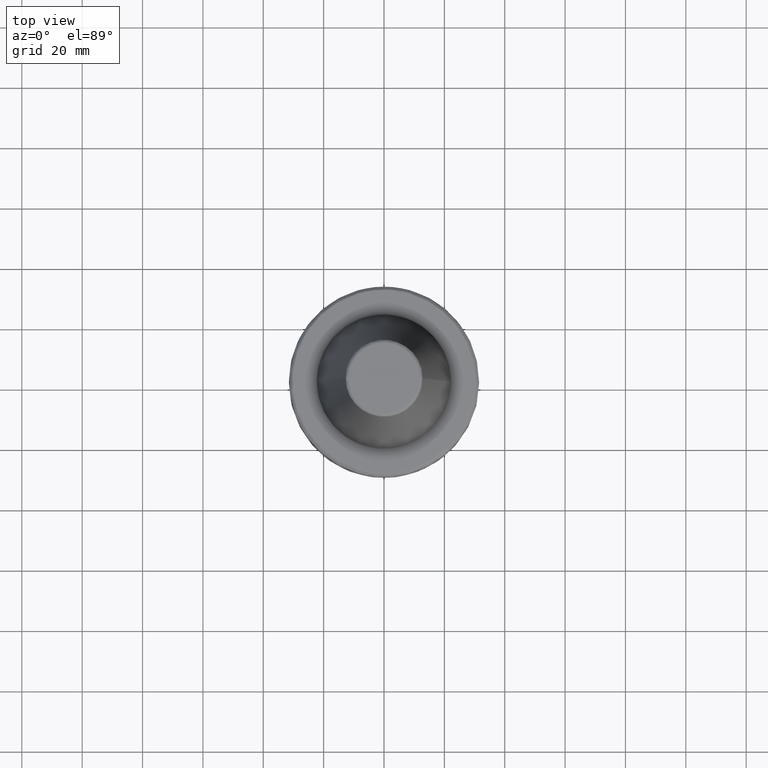
[diagram: clean part render]
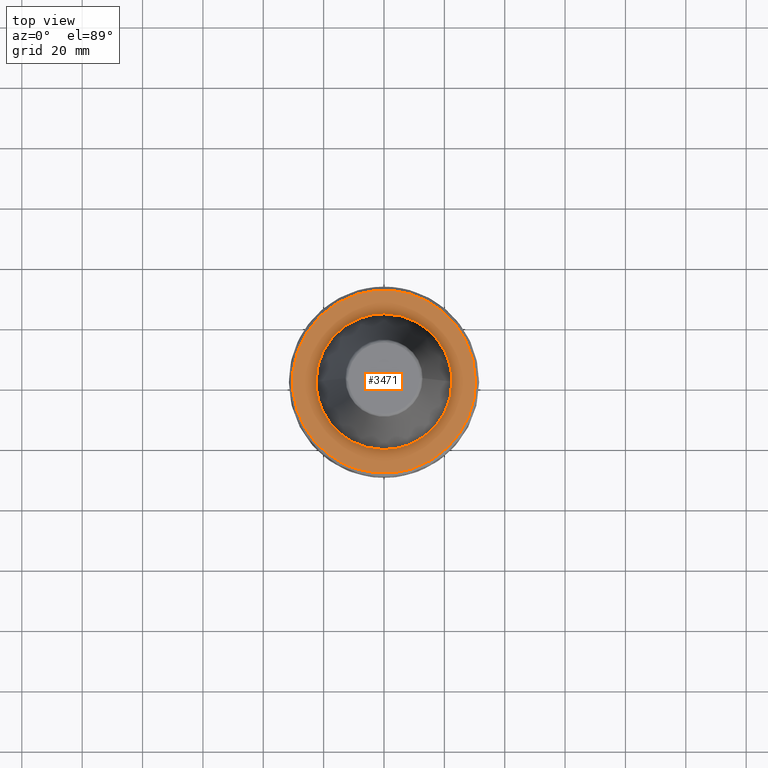
[diagram: same view with one face highlighted and labeled with its STEP entity id]
A machine part, top view. The second image highlights one B-rep face of the part: STEP entity #3471.
In plain terms, the highlighted planar face has unit normal (0, 0, 1).
Its self-contained STEP definition (entity closure, byte-faithful):
#4 = VERTEX_POINT ( 'NONE', #3388 ) ;
#7 = CARTESIAN_POINT ( 'NONE',  ( 29.99094772099370600, 4.551500430294993300, -1.999999999999999600 ) ) ;
#13 = CARTESIAN_POINT ( 'NONE',  ( -13.11172331986949400, 18.28529471639384200, -2.000000000000000900 ) ) ;
#22 = CARTESIAN_POINT ( 'NONE',  ( 25.35861405909240000, 16.73046950027951900, -2.000000000000000000 ) ) ;
#32 = EDGE_CURVE ( 'NONE', #4, #3438, #551, .T. ) ;
#38 = CARTESIAN_POINT ( 'NONE',  ( -14.23482895676215400, -17.42690797839594600, -2.000000000000000000 ) ) ;
#55 = CARTESIAN_POINT ( 'NONE',  ( -16.78551473871575100, -14.98815131785685600, -2.000000000000000000 ) ) ;
#63 = CARTESIAN_POINT ( 'NONE',  ( -8.044109406782046900, -21.01298425130612600, -2.000000000000000000 ) ) ;
#68 = CARTESIAN_POINT ( 'NONE',  ( -19.18082298020416600, -11.76207821324861800, -2.000000000000000400 ) ) ;
#74 = CARTESIAN_POINT ( 'NONE',  ( 14.86329724952981700, -26.46491810294228800, -2.000000000000000000 ) ) ;
#79 = CARTESIAN_POINT ( 'NONE',  ( -21.26506413704092000, -7.364013759528373400, -1.999999999999999600 ) ) ;
#84 = CARTESIAN_POINT ( 'NONE',  ( 20.98426912901427200, -21.90529410217327200, -2.000000000000000400 ) ) ;
#88 = CARTESIAN_POINT ( 'NONE',  ( -22.23055402281023200, -3.476789302960926700, -1.999999999999999600 ) ) ;
#96 = CARTESIAN_POINT ( 'NONE',  ( 28.20668680456587700, 11.21377500266966000, -1.999999999999999600 ) ) ;
#98 = CARTESIAN_POINT ( 'NONE',  ( 28.65556977973370300, -9.955146742139751500, -2.000000000000000000 ) ) ;
#105 = CARTESIAN_POINT ( 'NONE',  ( -12.17877127727802700, 27.78220357655397200, -2.000000000000000000 ) ) ;
#115 = CARTESIAN_POINT ( 'NONE',  ( 30.21732498440779600, -3.076460664488314600, -1.999999999999999100 ) ) ;
#119 = CARTESIAN_POINT ( 'NONE',  ( -13.15617446357406500, -18.25763943823461200, -2.000000000000000000 ) ) ;
#128 = CARTESIAN_POINT ( 'NONE',  ( -22.94166126693889000, 19.84568985537105900, -1.999999999999999600 ) ) ;
#130 = CARTESIAN_POINT ( 'NONE',  ( 17.27857023572334300, 24.93239110034385000, -2.000000000000000000 ) ) ;
#134 = VERTEX_POINT ( 'NONE', #2842 ) ;
#141 = CARTESIAN_POINT ( 'NONE',  ( -27.03275052794976900, 13.76274605887248900, -2.000000000000000400 ) ) ;
#153 = CARTESIAN_POINT ( 'NONE',  ( -29.11565157956925600, 8.512487641073768400, -2.000000000000000400 ) ) ;
#165 = CARTESIAN_POINT ( 'NONE',  ( -30.33432308685291200, -0.4694522693282250900, -1.999999999999999600 ) ) ;
#176 = CARTESIAN_POINT ( 'NONE',  ( -29.30241173568175800, -7.845556328475986200, -2.000000000000000400 ) ) ;
#180 = CARTESIAN_POINT ( 'NONE',  ( -15.91831110413052700, 25.82205332737878900, -2.000000000000000000 ) ) ;
#193 = CARTESIAN_POINT ( 'NONE',  ( -27.32835918820002500, -13.16565572133904100, -2.000000000000000000 ) ) ;
#197 = CARTESIAN_POINT ( 'NONE',  ( 22.50000000271268500, -1.666664491602650400E-010, -2.000000000000000000 ) ) ;
#204 = CARTESIAN_POINT ( 'NONE',  ( -23.45444527785203800, -19.23904396916226000, -1.999999999999999600 ) ) ;
#205 = CARTESIAN_POINT ( 'NONE',  ( 0.4686583153794600700, 22.49999999948165900, -2.000000000000000000 ) ) ;
#208 = CARTESIAN_POINT ( 'NONE',  ( -15.82653136435980000, 25.87846080661395800, -2.000000000000000400 ) ) ;
#211 = CARTESIAN_POINT ( 'NONE',  ( 21.63439239585896300, -6.181036402032702900, -2.000000000000000000 ) ) ;
#215 = CARTESIAN_POINT ( 'NONE',  ( -19.60727101110880700, -23.14575879742191600, -2.000000000000000400 ) ) ;
#216 = CARTESIAN_POINT ( 'NONE',  ( 5.427523563190066000, 21.83586418869720100, -2.000000000000000000 ) ) ;
#218 = CARTESIAN_POINT ( 'NONE',  ( -12.63209947724280200, -18.61942464744292300, -2.000000000000000400 ) ) ;
#219 = CARTESIAN_POINT ( 'NONE',  ( 20.07282401641333500, -10.17114791825562700, -2.000000000000000000 ) ) ;
#223 = CARTESIAN_POINT ( 'NONE',  ( -5.651118105835117900, 21.77907822906553300, -2.000000000000000000 ) ) ;
#225 = CARTESIAN_POINT ( 'NONE',  ( -13.39887550408306700, -27.21858097104123100, -2.000000000000000000 ) ) ;
#228 = CARTESIAN_POINT ( 'NONE',  ( 10.48933893793605400, 19.90544722135084400, -2.000000000000000400 ) ) ;
#229 = CARTESIAN_POINT ( 'NONE',  ( 27.18528209558372000, 13.45890902763199100, -2.000000000000000000 ) ) ;
#234 = CARTESIAN_POINT ( 'NONE',  ( 17.76934023096867300, -13.80756116541771100, -2.000000000000000400 ) ) ;
#243 = CARTESIAN_POINT ( 'NONE',  ( -18.01441623470941500, 13.48077742683851100, -2.000000000000000000 ) ) ;
#246 = CARTESIAN_POINT ( 'NONE',  ( 14.63583451594456100, 17.08932521809331100, -2.000000000000000400 ) ) ;
#250 = CARTESIAN_POINT ( 'NONE',  ( 3.978917889613242700E-010, -22.50000000000000000, -2.000000000000000000 ) ) ;
#251 = CARTESIAN_POINT ( 'NONE',  ( 16.65456653282609200, -15.12870294989808400, -2.000000000000000000 ) ) ;
#258 = CARTESIAN_POINT ( 'NONE',  ( -5.982213438293923600, -21.69500478119152100, -1.999999999999999600 ) ) ;
#259 = CARTESIAN_POINT ( 'NONE',  ( 17.58938973412238500, 14.03311663753132000, -2.000000000000000000 ) ) ;
#262 = CARTESIAN_POINT ( 'NONE',  ( 14.87028091929152400, -16.88571007685271800, -2.000000000000000900 ) ) ;
#270 = CARTESIAN_POINT ( 'NONE',  ( 19.21723556816369100, 11.70249133437200200, -2.000000000000000400 ) ) ;
#273 = CARTESIAN_POINT ( 'NONE',  ( 8.876639667084820200, -20.67712824891115600, -2.000000000000000000 ) ) ;
#280 = B_SPLINE_CURVE_WITH_KNOTS ( 'NONE', 3,
 ( #250, #971, #2638, #3516, #912, #1235, #2021, #827, #3045, #1974, #2684, #1331, #258, #1067, #2223, #1083, #513, #63, #1991, #1610, #2339, #2101, #2642, #2546, #561, #2492, #1516, #3061, #840, #1947, #218, #2057, #2128, #119, #1852, #38, #1769, #340, #2328, #620, #2597, #908, #2849, #1206, #3118, #1492, #3372, #1786, #55, #2064, #351, #2344, #627, #2603, #923, #2858, #1214, #3127, #1513, #3384, #1798, #68, #2077, #360, #2357, #642, #2613, #935, #2871, #1231, #3136, #1523, #3397, #1811, #79, #2089, #653, #2628, #944, #2882, #1244, #3149, #1530, #3410, #1830, #88, #2102, #386, #372, #2366, #2377, #662, #2639, #959 ),
 .UNSPECIFIED., .F., .F.,
 ( 4, 1, 2, 2, 1, 1, 2, 2, 1, 1, 1, 2, 2, 1, 1, 1, 2, 2, 1, 1, 1, 2, 2, 1, 1, 1, 2, 2, 1, 1, 1, 1, 2, 2, 1, 1, 1, 1, 2, 2, 1, 1, 1, 1, 2, 2, 1, 1, 1, 1, 2, 2, 1, 1, 1, 1, 1, 1, 2, 2, 1, 1, 1, 1, 1, 2, 2, 4 ),
 ( 0.0000000000000000000, 0.03124999999999704400, 0.04687499999999555900, 0.06249999999999407400, 0.09374999999999110400, 0.1093749999999896300, 0.1171874999999888600, 0.1249999999999880900, 0.1562499999999850100, 0.1718749999999834300, 0.1796874999999826300, 0.1835937499999821800, 0.1874999999999817600, 0.2187499999999779900, 0.2343749999999761300, 0.2421874999999752700, 0.2460937499999748800, 0.2499999999999745200, 0.2812499999999709100, 0.2968749999999689700, 0.3046874999999680800, 0.3085937499999676900, 0.3124999999999673600, 0.3437499999999639700, 0.3593749999999623100, 0.3671874999999614200, 0.3710937499999610900, 0.3749999999999607000, 0.4062499999999569800, 0.4218749999999551500, 0.4296874999999543700, 0.4335937499999540900, 0.4355468749999538700, 0.4374999999999536500, 0.4687499999999530900, 0.4843749999999528700, 0.4921874999999526500, 0.4960937499999527000, 0.4980468749999525900, 0.4999999999999525400, 0.5312499999999500400, 0.5468749999999489300, 0.5546874999999482600, 0.5585937499999481500, 0.5605468749999481500, 0.5624999999999482600, 0.5937499999999519300, 0.6093749999999539300, 0.6171874999999548100, 0.6210937499999552600, 0.6230468749999554800, 0.6249999999999557000, 0.6874999999999618100, 0.7187499999999649200, 0.7343749999999662500, 0.7421874999999670300, 0.7460937499999673600, 0.7480468749999676900, 0.7490234374999678000, 0.7499999999999679100, 0.8124999999999756900, 0.8437499999999794600, 0.8593749999999814600, 0.8671874999999824600, 0.8710937499999830100, 0.8730468749999832400, 0.8749999999999834600, 1.000000000000000000 ),
 .UNSPECIFIED. ) ;
#283 = CARTESIAN_POINT ( 'NONE',  ( 21.52040276685951500, 6.567616659312715700, -2.000000000000000000 ) ) ;
#289 = CARTESIAN_POINT ( 'NONE',  ( 1.871535437497375600, -22.44163424074204400, -1.999999999999999100 ) ) ;
#297 = CARTESIAN_POINT ( 'NONE',  ( 22.29616630517870100, 3.021796004576644100, -1.999999999999999100 ) ) ;
#298 = CARTESIAN_POINT ( 'NONE',  ( -21.60988749927509300, 6.266023070033702100, -1.999999999999999600 ) ) ;
#313 = CARTESIAN_POINT ( 'NONE',  ( 21.35866752171921600, 21.54041520532153300, -2.000000000000000400 ) ) ;
#330 = CARTESIAN_POINT ( 'NONE',  ( 28.91336940162863900, 9.175520046361970800, -2.000000000000000000 ) ) ;
#337 = CARTESIAN_POINT ( 'NONE',  ( -22.08184506192212700, 4.382392532560251300, -2.000000000000000000 ) ) ;
#340 = CARTESIAN_POINT ( 'NONE',  ( -14.63583451596088400, -17.08932521811538100, -2.000000000000000000 ) ) ;
#341 = EDGE_LOOP ( 'NONE', ( #1130, #427, #703, #2345, #2735 ) ) ;
#351 = CARTESIAN_POINT ( 'NONE',  ( -17.58938973410416700, -14.03311663759687100, -2.000000000000000400 ) ) ;
#354 = B_SPLINE_CURVE_WITH_KNOTS ( 'NONE', 3,
 ( #860, #2807, #2557, #579, #2023, #3078, #1159, #1248, #7, #1737, #2924, #363, #2301, #2370, #2634, #330, #523, #1534, #96, #2827, #2233, #229, #3343, #1746, #2907, #22, #1465, #3090, #1758, #2579, #313, #605, #2038, #2569, #1475, #3100, #1186, #3446, #2359, #886, #130, #2885, #1570, #429, #2105, #1866, #696, #962, #2144, #398, #2651, #2419 ),
 .UNSPECIFIED., .F., .F.,
 ( 4, 1, 1, 1, 1, 2, 2, 1, 1, 1, 1, 2, 2, 1, 1, 1, 2, 2, 2, 1, 1, 1, 2, 2, 1, 1, 1, 1, 2, 2, 1, 1, 1, 1, 2, 2, 4 ),
 ( 0.0000000000000000000, 0.06249999999999955600, 0.09374999999999932000, 0.1093749999999992200, 0.1171874999999992000, 0.1210937499999991300, 0.1249999999999990600, 0.1874999999999980000, 0.2187499999999974200, 0.2343749999999971100, 0.2421874999999968600, 0.2460937499999967800, 0.2499999999999967000, 0.3124999999999965600, 0.3437499999999965600, 0.3593749999999965600, 0.3671874999999965000, 0.3749999999999964500, 0.4999999999999954500, 0.5624999999999950000, 0.5937499999999947800, 0.6093749999999947800, 0.6171874999999947800, 0.6249999999999946700, 0.6874999999999942300, 0.7187499999999938900, 0.7343749999999937800, 0.7421874999999938900, 0.7460937499999937800, 0.7499999999999937800, 0.8124999999999926700, 0.8437499999999920100, 0.8593749999999917800, 0.8671874999999917800, 0.8710937499999917800, 0.8749999999999919000, 1.000000000000000000 ),
 .UNSPECIFIED. ) ;
#360 = CARTESIAN_POINT ( 'NONE',  ( -19.21723556818741200, -11.70249133438693800, -2.000000000000000000 ) ) ;
#363 = CARTESIAN_POINT ( 'NONE',  ( 29.28491610948365000, 7.927833161491784100, -2.000000000000000400 ) ) ;
#367 = CARTESIAN_POINT ( 'NONE',  ( 16.65416802553617300, -25.35511054004370000, -2.000000000000000400 ) ) ;
#372 = CARTESIAN_POINT ( 'NONE',  ( -22.29138665795385800, -3.056853186462818300, -1.999999999999999600 ) ) ;
#379 = CARTESIAN_POINT ( 'NONE',  ( 23.36555037775809000, -19.41688640916288500, -2.000000000000000000 ) ) ;
#386 = CARTESIAN_POINT ( 'NONE',  ( -22.28415618938998200, -3.109425800227568100, -2.000000000000000000 ) ) ;
#391 = CARTESIAN_POINT ( 'NONE',  ( 28.81923370765531800, -9.467053972600428600, -2.000000000000000000 ) ) ;
#396 = CARTESIAN_POINT ( 'NONE',  ( -12.26931175442745200, 27.74229595645892100, -1.999999999999999600 ) ) ;
#398 = CARTESIAN_POINT ( 'NONE',  ( 11.67427520303944500, 28.04074170491404800, -1.999999999999999600 ) ) ;
#401 = CARTESIAN_POINT ( 'NONE',  ( 30.33431457141653100, -1.666664491602650400E-010, -2.000000000000000000 ) ) ;
#404 = CARTESIAN_POINT ( 'NONE',  ( -19.44406998661431600, 23.28309572700324300, -2.000000000000000000 ) ) ;
#422 = CARTESIAN_POINT ( 'NONE',  ( -23.53005888122114400, 19.16329848470477500, -2.000000000000000000 ) ) ;
#427 = ORIENTED_EDGE ( 'NONE', *, *, #794, .T. ) ;
#429 = CARTESIAN_POINT ( 'NONE',  ( 14.32913341019567200, 26.74200232860899400, -2.000000000000000000 ) ) ;
#434 = CARTESIAN_POINT ( 'NONE',  ( -12.85604715748529800, 18.46550698983944400, -2.000000000000000000 ) ) ;
#437 = CARTESIAN_POINT ( 'NONE',  ( -27.18025756469030100, 13.46910465738466900, -2.000000000000000000 ) ) ;
#446 = CARTESIAN_POINT ( 'NONE',  ( -29.30556523501258300, 7.846641085592446000, -1.999999999999999600 ) ) ;
#457 = CARTESIAN_POINT ( 'NONE',  ( -22.49999999767150500, 0.0000000000000000000, -2.000000000000000000 ) ) ;
#460 = CARTESIAN_POINT ( 'NONE',  ( -30.27719128641967900, -1.875636118512029800, -2.000000000000000000 ) ) ;
#476 = CARTESIAN_POINT ( 'NONE',  ( -29.21013559782361200, -8.182394721667456800, -2.000000000000000000 ) ) ;
#485 = CARTESIAN_POINT ( 'NONE',  ( -27.25412894766513000, -13.31863642267733600, -2.000000000000000000 ) ) ;
#489 = B_SPLINE_CURVE_WITH_KNOTS ( 'NONE', 3,
 ( #197, #728, #2198, #1391, #1359, #764, #2725, #2984, #1650, #1057, #3514, #3247, #2482, #1935, #535, #211, #2213, #499, #1068, #780, #2740, #1374, #3258, #2995, #2224, #3549, #1659, #3528, #219, #2495, #1949, #789, #515, #3270, #2753, #1086, #1975, #3007, #1382, #1964, #1670, #3538, #2236, #526, #234, #3023, #2507, #2332, #251, #2248, #2775, #2519, #817, #3038, #1409, #1114, #262, #3292, #2058, #1698, #1987, #552, #3563, #2529, #2264, #1427, #828, #2789, #1126, #1207, #3047, #3577, #3307, #1706, #273, #2273, #2002, #1146, #567, #2545, #621, #2803, #1439, #839, #3319, #3059, #2282, #1722, #3587, #2014, #289, #2599, #854 ),
 .UNSPECIFIED., .F., .F.,
 ( 4, 1, 1, 1, 1, 1, 2, 2, 1, 1, 1, 1, 1, 2, 2, 1, 1, 1, 1, 1, 2, 2, 1, 1, 1, 1, 2, 2, 1, 1, 1, 1, 2, 2, 1, 1, 1, 2, 2, 1, 1, 1, 2, 2, 1, 1, 1, 2, 2, 1, 1, 1, 2, 2, 1, 1, 1, 2, 2, 1, 1, 2, 2, 1, 2, 2, 4 ),
 ( 0.0000000000000000000, 0.06250000000000263700, 0.09375000000000395500, 0.1093750000000045800, 0.1171875000000049000, 0.1210937500000050500, 0.1230468750000051300, 0.1250000000000052200, 0.1875000000000082400, 0.2187500000000097400, 0.2343750000000104600, 0.2421875000000108500, 0.2460937500000109400, 0.2480468750000110200, 0.2500000000000111000, 0.3125000000000152100, 0.3437500000000172600, 0.3593750000000184900, 0.3671875000000189800, 0.3710937500000192600, 0.3730468750000193200, 0.3750000000000193200, 0.4062500000000211500, 0.4218750000000220400, 0.4296875000000224800, 0.4335937500000226500, 0.4355468750000225900, 0.4375000000000225900, 0.4687500000000208700, 0.4843750000000200400, 0.4921875000000197600, 0.4960937500000197100, 0.4980468750000196500, 0.5000000000000195400, 0.5312500000000184300, 0.5468750000000178700, 0.5546875000000175400, 0.5585937500000173200, 0.5625000000000172100, 0.5937500000000155400, 0.6093750000000147700, 0.6171875000000143200, 0.6210937500000141000, 0.6250000000000138800, 0.6562500000000119900, 0.6718750000000109900, 0.6796875000000105500, 0.6835937500000104400, 0.6875000000000102100, 0.7187500000000093300, 0.7343750000000088800, 0.7421875000000085500, 0.7460937500000085500, 0.7500000000000084400, 0.7812500000000073300, 0.7968750000000067700, 0.8046875000000065500, 0.8085937500000063300, 0.8125000000000062200, 0.8437500000000050000, 0.8593750000000044400, 0.8671875000000041100, 0.8750000000000036600, 0.9062500000000026600, 0.9218750000000022200, 0.9375000000000017800, 1.000000000000000000 ),
 .UNSPECIFIED. ) ;
#495 = CARTESIAN_POINT ( 'NONE',  ( -23.09558507412502900, -19.66645775185143900, -2.000000000000000400 ) ) ;
#499 = CARTESIAN_POINT ( 'NONE',  ( 21.60988749927661000, -6.266023070035295500, -2.000000000000000400 ) ) ;
#508 = CARTESIAN_POINT ( 'NONE',  ( -18.99907164140316600, -23.65931423673382700, -2.000000000000000000 ) ) ;
#510 = CARTESIAN_POINT ( 'NONE',  ( 6.641587595562357100, 21.50598986233078900, -2.000000000000000400 ) ) ;
#513 = CARTESIAN_POINT ( 'NONE',  ( -7.937079989794801400, -21.05364590143070200, -1.999999999999999600 ) ) ;
#515 = CARTESIAN_POINT ( 'NONE',  ( 19.30692970576655700, -11.55403222308050800, -2.000000000000000400 ) ) ;
#521 = CARTESIAN_POINT ( 'NONE',  ( -12.58065281776989700, -27.60273296615679000, -2.000000000000000000 ) ) ;
#522 = CARTESIAN_POINT ( 'NONE',  ( 10.97172190960016800, 19.64842631301700100, -2.000000000000000400 ) ) ;
#523 = CARTESIAN_POINT ( 'NONE',  ( 28.89858134358966500, 9.221997355064042200, -2.000000000000000000 ) ) ;
#526 = CARTESIAN_POINT ( 'NONE',  ( 18.01441623471074700, -13.48077742683984000, -2.000000000000000400 ) ) ;
#532 = CARTESIAN_POINT ( 'NONE',  ( 14.75661187436774900, 16.98513716557446800, -1.999999999999999600 ) ) ;
#535 = CARTESIAN_POINT ( 'NONE',  ( 21.66821451529636300, -6.061954555022891700, -1.999999999999999600 ) ) ;
#539 = CARTESIAN_POINT ( 'NONE',  ( -16.97492298785106600, 14.77047730837782100, -2.000000000000000000 ) ) ;
#544 = CARTESIAN_POINT ( 'NONE',  ( 17.89857978315522000, 13.63432435885154300, -2.000000000000000900 ) ) ;
#551 = CIRCLE ( 'NONE', #1777, 30.33431457141653100 ) ;
#552 = CARTESIAN_POINT ( 'NONE',  ( 13.11172331988104600, -18.28529471638923500, -2.000000000000000400 ) ) ;
#561 = CARTESIAN_POINT ( 'NONE',  ( -10.48933893793745000, -19.90544722138012200, -1.999999999999999600 ) ) ;
#562 = CARTESIAN_POINT ( 'NONE',  ( 19.66804588259726600, 10.93750099006755000, -2.000000000000000000 ) ) ;
#567 = CARTESIAN_POINT ( 'NONE',  ( 8.204285172003354300, -20.95096463647039900, -1.999999999999999600 ) ) ;
#572 = CARTESIAN_POINT ( 'NONE',  ( 21.58035923681554600, 6.367004990940167800, -2.000000000000000000 ) ) ;
#574 = CARTESIAN_POINT ( 'NONE',  ( -12.45411383816394100, 18.74391560778803600, -1.999999999999999600 ) ) ;
#579 = CARTESIAN_POINT ( 'NONE',  ( 30.16248611717143300, 3.264816100348026500, -2.000000000000000900 ) ) ;
#582 = B_SPLINE_CURVE_WITH_KNOTS ( 'NONE', 3,
 ( #2575, #2472, #3444, #1546, #3418, #1842, #105, #2114, #396, #2391, #675, #2648, #969, #2903, #1263, #208, #1934, #180, #2649, #3070, #761, #3432, #1561, #3166, #404, #2401, #689, #2657, #977, #2912, #1279, #3175, #1568, #3440, #1861, #128, #2138, #422, #2411, #693, #2670, #991, #2919, #1289, #3187, #1575, #3451, #1870, #141, #2148, #437, #2426, #701, #2681, #1003, #2931, #1299, #3199, #1593, #3463, #1883, #153, #2162, #446, #2438, #721, #2688, #1016, #2944, #1314, #3209, #1607, #3479, #1892, #165, #2173, #460, #2446, #736, #2701, #1023, #2952, #1332, #3219, #1619, #3490, #1914, #176, #2182, #476, #2460, #744, #2712, #1040, #2963, #1344, #3234, #1631, #3498, #1924, #193, #2192, #485, #2470, #756, #2720, #1053, #2978, #1352, #3243, #1646, #3509, #1932, #204, #2208, #495, #2479, #771, #2732, #1063, #2990, #1368, #3254, #1655, #3520, #1942, #215, #2218, #508, #2487, #785, #2747, #1076, #3001, #1379, #3263, #1665, #3533, #1956, #225, #2231, #521, #2502, #793, #2760, #1093, #3013, #1386, #3278 ),
 .UNSPECIFIED., .F., .F.,
 ( 4, 1, 1, 1, 1, 1, 2, 2, 1, 1, 1, 1, 1, 2, 2, 1, 1, 1, 1, 1, 2, 2, 1, 1, 1, 1, 1, 2, 2, 1, 1, 1, 1, 2, 2, 1, 1, 2, 2, 1, 1, 2, 2, 1, 1, 2, 2, 1, 2, 2, 2, 2, 2, 1, 2, 2, 1, 2, 2, 1, 1, 2, 2, 1, 1, 2, 2, 1, 1, 1, 2, 2, 1, 1, 1, 2, 2, 1, 1, 1, 1, 1, 2, 2, 1, 1, 1, 1, 1, 2, 2, 1, 1, 1, 1, 1, 2, 2, 1, 1, 1, 1, 1, 2, 2, 4 ),
 ( 0.0000000000000000000, 0.03125000000000367800, 0.04687500000000558600, 0.05468750000000654300, 0.05859375000000705000, 0.06054687500000734100, 0.06152343750000751500, 0.06250000000000770200, 0.09375000000001575100, 0.1093750000000197300, 0.1171875000000217200, 0.1210937500000226300, 0.1230468750000231900, 0.1240234375000234400, 0.1250000000000236800, 0.1562500000000297300, 0.1718750000000327000, 0.1796875000000341700, 0.1835937500000348300, 0.1855468750000351900, 0.1865234375000353100, 0.1875000000000354200, 0.2187500000000346400, 0.2343750000000342800, 0.2421875000000341400, 0.2460937500000341100, 0.2480468750000340800, 0.2490234375000340600, 0.2500000000000340300, 0.2812500000000315300, 0.2968750000000302000, 0.3046875000000295300, 0.3085937500000291400, 0.3105468750000290300, 0.3125000000000289200, 0.3281250000000283700, 0.3359375000000280300, 0.3398437500000278700, 0.3437500000000277600, 0.3593750000000270900, 0.3671875000000267000, 0.3710937500000265900, 0.3750000000000264200, 0.3906250000000257600, 0.3984375000000254200, 0.4023437500000252600, 0.4062500000000250900, 0.4218750000000243100, 0.4296875000000239300, 0.4375000000000234800, 0.4531250000000227600, 0.4687500000000219300, 0.5000000000000203200, 0.5156250000000195400, 0.5234375000000191000, 0.5312500000000186500, 0.5468750000000178700, 0.5546875000000174300, 0.5625000000000169900, 0.5781250000000162100, 0.5859375000000157700, 0.5898437500000155400, 0.5937500000000153200, 0.6093750000000146500, 0.6171875000000142100, 0.6210937500000139900, 0.6250000000000137700, 0.6406250000000133200, 0.6484375000000131000, 0.6523437500000129900, 0.6542968750000131000, 0.6562500000000131000, 0.6718750000000129900, 0.6796875000000128800, 0.6835937500000128800, 0.6855468750000128800, 0.6875000000000128800, 0.7187500000000131000, 0.7343750000000132100, 0.7421875000000133200, 0.7460937500000134300, 0.7480468750000134300, 0.7490234375000134300, 0.7500000000000134300, 0.7812500000000099900, 0.7968750000000083300, 0.8046875000000074400, 0.8085937500000071100, 0.8105468750000069900, 0.8115234375000068800, 0.8125000000000067700, 0.8437500000000063300, 0.8593750000000061100, 0.8671875000000060000, 0.8710937500000060000, 0.8730468750000060000, 0.8740234375000061100, 0.8750000000000062200, 0.9062500000000063300, 0.9218750000000063300, 0.9296875000000062200, 0.9335937500000062200, 0.9355468750000062200, 0.9365234375000062200, 0.9375000000000062200, 1.000000000000000000 ),
 .UNSPECIFIED. ) ;
#583 = CARTESIAN_POINT ( 'NONE',  ( 22.43362831756874700, 1.995745862310187800, -2.000000000000000400 ) ) ;
#596 = CARTESIAN_POINT ( 'NONE',  ( -19.03860170070342400, 11.99648927023898200, -2.000000000000000000 ) ) ;
#605 = CARTESIAN_POINT ( 'NONE',  ( 21.20970819173146200, 21.68708970333951000, -2.000000000000000000 ) ) ;
#606 = CARTESIAN_POINT ( 'NONE',  ( 3.978917889613242700E-010, 22.50000000000000000, -2.000000000000001800 ) ) ;
#607 = CARTESIAN_POINT ( 'NONE',  ( 9.491616503869943600, -28.82151569921428100, -2.000000000000000000 ) ) ;
#618 = CARTESIAN_POINT ( 'NONE',  ( -20.28557210200125700, 9.733875637560338100, -2.000000000000000400 ) ) ;
#620 = CARTESIAN_POINT ( 'NONE',  ( -14.75661187438957700, -16.98513716559248700, -2.000000000000000000 ) ) ;
#621 = CARTESIAN_POINT ( 'NONE',  ( 7.077598297685426600, -21.36646605478392400, -2.000000000000000400 ) ) ;
#627 = CARTESIAN_POINT ( 'NONE',  ( -17.89857978316503700, -13.63432435888357800, -2.000000000000000000 ) ) ;
#642 = CARTESIAN_POINT ( 'NONE',  ( -19.66804588263058000, -10.93750099007221800, -2.000000000000000000 ) ) ;
#649 = CARTESIAN_POINT ( 'NONE',  ( 17.07129888380587000, -25.07476727137224900, -1.999999999999999600 ) ) ;
#653 = CARTESIAN_POINT ( 'NONE',  ( -21.52040276688975600, -6.567616659310228800, -2.000000000000000000 ) ) ;
#658 = CARTESIAN_POINT ( 'NONE',  ( 25.56323179921445300, -16.36831578693300300, -2.000000000000000000 ) ) ;
#662 = CARTESIAN_POINT ( 'NONE',  ( -22.43362831759678900, -1.995745862439739100, -2.000000000000000000 ) ) ;
#669 = CARTESIAN_POINT ( 'NONE',  ( 28.86751917884275500, -9.318767940520835700, -2.000000000000000000 ) ) ;
#675 = CARTESIAN_POINT ( 'NONE',  ( -12.93548555514544800, 27.44666887089550400, -2.000000000000000900 ) ) ;
#678 = EDGE_CURVE ( 'NONE', #2691, #134, #280, .T. ) ;
#689 = CARTESIAN_POINT ( 'NONE',  ( -19.53337508528804600, 23.20815379000831400, -2.000000000000001300 ) ) ;
#693 = CARTESIAN_POINT ( 'NONE',  ( -25.16654743516653900, 16.94516325629388100, -1.999999999999999600 ) ) ;
#696 = CARTESIAN_POINT ( 'NONE',  ( 13.25339446666816000, 27.28590737108972400, -1.999999999999999600 ) ) ;
#700 = CARTESIAN_POINT ( 'NONE',  ( -20.46398431289110000, 9.355263630592190800, -2.000000000000000400 ) ) ;
#701 = CARTESIAN_POINT ( 'NONE',  ( -27.71196662877909500, 12.35204075549246400, -2.000000000000000000 ) ) ;
#703 = ORIENTED_EDGE ( 'NONE', *, *, #3101, .T. ) ;
#721 = CARTESIAN_POINT ( 'NONE',  ( -29.63151440880002600, 6.496017185929775700, -1.999999999999999600 ) ) ;
#728 = CARTESIAN_POINT ( 'NONE',  ( 22.49999999899562300, -0.4999146539297789100, -2.000000000000000400 ) ) ;
#736 = CARTESIAN_POINT ( 'NONE',  ( -30.22537985298928100, -2.579034886204736300, -2.000000000000000000 ) ) ;
#744 = CARTESIAN_POINT ( 'NONE',  ( -28.85137362412167800, -9.388095371115818800, -2.000000000000000400 ) ) ;
#753 = CARTESIAN_POINT ( 'NONE',  ( -21.66821451529643000, 6.061954555015256900, -2.000000000000000000 ) ) ;
#756 = CARTESIAN_POINT ( 'NONE',  ( -26.73137068471725500, -14.35080375621441500, -1.999999999999999600 ) ) ;
#761 = CARTESIAN_POINT ( 'NONE',  ( -17.51699707702757200, 24.78515420496838200, -2.000000000000000000 ) ) ;
#764 = CARTESIAN_POINT ( 'NONE',  ( 22.32901514004307900, -2.769816004121042200, -2.000000000000000000 ) ) ;
#771 = CARTESIAN_POINT ( 'NONE',  ( -23.00909626176261500, -19.76746816172157800, -1.999999999999999600 ) ) ;
#774 = CARTESIAN_POINT ( 'NONE',  ( 1.170346604427390500, 22.47811283994909500, -2.000000000000000400 ) ) ;
#780 = CARTESIAN_POINT ( 'NONE',  ( 21.42133791498496400, -6.912607576344702100, -2.000000000000000400 ) ) ;
#785 = CARTESIAN_POINT ( 'NONE',  ( -17.05157918424436000, -25.09305249303434900, -2.000000000000000000 ) ) ;
#787 = CARTESIAN_POINT ( 'NONE',  ( 7.776340436408474100, 21.11401388815755100, -2.000000000000000400 ) ) ;
#789 = CARTESIAN_POINT ( 'NONE',  ( 19.38459928417975300, -11.42367658492363300, -2.000000000000000000 ) ) ;
#792 = CARTESIAN_POINT ( 'NONE',  ( -15.83027643333403700, 15.99802599271078800, -2.000000000000000000 ) ) ;
#793 = CARTESIAN_POINT ( 'NONE',  ( -12.38423346089844100, -27.69118654020772800, -2.000000000000000000 ) ) ;
#794 = EDGE_CURVE ( 'NONE', #3438, #3022, #582, .T. ) ;
#795 = CARTESIAN_POINT ( 'NONE',  ( 12.17997994050974800, 18.92039567792312100, -2.000000000000000000 ) ) ;
#804 = DIRECTION ( 'NONE',  ( 1.000000000000000000, 0.0000000000000000000, 0.0000000000000000000 ) ) ;
#808 = CARTESIAN_POINT ( 'NONE',  ( -18.09567323279513200, 13.37161851830259400, -2.000000000000000000 ) ) ;
#811 = CARTESIAN_POINT ( 'NONE',  ( 15.54150066997474200, 16.27870622000741800, -2.000000000000000000 ) ) ;
#817 = CARTESIAN_POINT ( 'NONE',  ( 15.83027643337300500, -15.99802599267256800, -2.000000000000000000 ) ) ;
#822 = CARTESIAN_POINT ( 'NONE',  ( -14.83401890046143400, 16.91758187730706500, -2.000000000000000400 ) ) ;
#824 = CARTESIAN_POINT ( 'NONE',  ( 17.97111081962215100, 13.53845304514271700, -2.000000000000000000 ) ) ;
#827 = CARTESIAN_POINT ( 'NONE',  ( -3.950975984681540900, -22.15896234660112500, -2.000000000000000000 ) ) ;
#828 = CARTESIAN_POINT ( 'NONE',  ( 11.90826421620672800, -19.09908383998240600, -2.000000000000000400 ) ) ;
#835 = CARTESIAN_POINT ( 'NONE',  ( 20.09013749218093600, 10.13160731317841700, -2.000000000000000000 ) ) ;
#839 = CARTESIAN_POINT ( 'NONE',  ( 5.760236844285800300, -21.75046461388992800, -2.000000000000000000 ) ) ;
#840 = CARTESIAN_POINT ( 'NONE',  ( -12.17997994047607900, -18.92039567798252300, -2.000000000000000400 ) ) ;
#847 = CARTESIAN_POINT ( 'NONE',  ( 21.59440682023715000, 6.319151484895005700, -1.999999999999999600 ) ) ;
#854 = CARTESIAN_POINT ( 'NONE',  ( 3.978917889613242700E-010, -22.50000000000000000, -2.000000000000000000 ) ) ;
#860 = CARTESIAN_POINT ( 'NONE',  ( 30.33431457141653100, -1.666664491602650400E-010, -2.000000000000000000 ) ) ;
#866 = CARTESIAN_POINT ( 'NONE',  ( 22.50000000271268500, -1.666664491602650400E-010, -2.000000000000000000 ) ) ;
#877 = CARTESIAN_POINT ( 'NONE',  ( -20.24217972205788000, 9.823671783909356100, -2.000000000000001300 ) ) ;
#882 = CARTESIAN_POINT ( 'NONE',  ( -22.49999999899376100, 0.4999146539153287400, -2.000000000000000400 ) ) ;
#886 = CARTESIAN_POINT ( 'NONE',  ( 17.32208312796712200, 24.90218239599002500, -1.999999999999999600 ) ) ;
#903 = CARTESIAN_POINT ( 'NONE',  ( -22.30501698081940600, 2.955745839597923500, -2.000000000000000400 ) ) ;
#907 = CIRCLE ( 'NONE', #3189, 30.33431457141653100 ) ;
#908 = CARTESIAN_POINT ( 'NONE',  ( -15.54150066994687900, -16.27870622007265700, -2.000000000000000000 ) ) ;
#912 = CARTESIAN_POINT ( 'NONE',  ( -2.336146064774385200, -22.37962062208050200, -1.999999999999999600 ) ) ;
#921 = CARTESIAN_POINT ( 'NONE',  ( -20.34573397137396700, 9.607936174391200600, -2.000000000000000400 ) ) ;
#923 = CARTESIAN_POINT ( 'NONE',  ( -17.97111081964083800, -13.53845304516413400, -2.000000000000000000 ) ) ;
#929 = CARTESIAN_POINT ( 'NONE',  ( 11.83941287395556900, -27.93322776929583600, -2.000000000000000000 ) ) ;
#935 = CARTESIAN_POINT ( 'NONE',  ( -20.09013749220986300, -10.13160731318714400, -2.000000000000000000 ) ) ;
#940 = CARTESIAN_POINT ( 'NONE',  ( 17.19472438683720100, -24.99029215989432000, -2.000000000000000000 ) ) ;
#942 = CARTESIAN_POINT ( 'NONE',  ( -15.31903564283427800, 16.48176112928513200, -2.000000000000000400 ) ) ;
#944 = CARTESIAN_POINT ( 'NONE',  ( -21.58035923684340000, -6.367004990945301500, -2.000000000000000400 ) ) ;
#952 = CARTESIAN_POINT ( 'NONE',  ( 26.65983321829865100, -14.47418957220238200, -2.000000000000000400 ) ) ;
#959 = CARTESIAN_POINT ( 'NONE',  ( -22.49999999767150500, 0.0000000000000000000, -2.000000000000000000 ) ) ;
#962 = CARTESIAN_POINT ( 'NONE',  ( 13.16285478277966800, 27.32969761399489500, -2.000000000000000000 ) ) ;
#964 = CARTESIAN_POINT ( 'NONE',  ( 29.44937089583815400, -7.350973885104851400, -2.000000000000000400 ) ) ;
#969 = CARTESIAN_POINT ( 'NONE',  ( -14.91907993752064800, 26.41594321651954400, -2.000000000000000000 ) ) ;
#971 = CARTESIAN_POINT ( 'NONE',  ( -0.4686583153698751800, -22.49999999950977900, -1.999999999999999600 ) ) ;
#976 = CARTESIAN_POINT ( 'NONE',  ( -15.05843738319029500, 16.71858814567716700, -2.000000000000000400 ) ) ;
#977 = CARTESIAN_POINT ( 'NONE',  ( -20.18096295507678700, 22.66145621103484200, -2.000000000000000000 ) ) ;
#991 = CARTESIAN_POINT ( 'NONE',  ( -25.76810133038493700, 16.00611813813909000, -2.000000000000000400 ) ) ;
#1003 = CARTESIAN_POINT ( 'NONE',  ( -28.14553413832830100, 11.31424795186395100, -2.000000000000000000 ) ) ;
#1016 = CARTESIAN_POINT ( 'NONE',  ( -29.77223559846780900, 5.817129645077610400, -2.000000000000000000 ) ) ;
#1023 = CARTESIAN_POINT ( 'NONE',  ( -30.07935801170436800, -3.973196832876918300, -2.000000000000000400 ) ) ;
#1040 = CARTESIAN_POINT ( 'NONE',  ( -28.47156557270738000, -10.46679024278376100, -2.000000000000000400 ) ) ;
#1053 = CARTESIAN_POINT ( 'NONE',  ( -26.16013753836977100, -15.35705237870072200, -2.000000000000000000 ) ) ;
#1057 = CARTESIAN_POINT ( 'NONE',  ( 22.30323190606700800, -2.969198742633516000, -2.000000000000000000 ) ) ;
#1063 = CARTESIAN_POINT ( 'NONE',  ( -22.45144898449702400, -20.41434030233244500, -1.999999999999999600 ) ) ;
#1065 = CARTESIAN_POINT ( 'NONE',  ( 2.336146064780368000, 22.37962062205254200, -2.000000000000000000 ) ) ;
#1067 = CARTESIAN_POINT ( 'NONE',  ( -6.641587595557259900, -21.50598986236397500, -2.000000000000000400 ) ) ;
#1068 = CARTESIAN_POINT ( 'NONE',  ( 21.60558318916238800, -6.280856013093579500, -1.999999999999999600 ) ) ;
#1073 = CARTESIAN_POINT ( 'NONE',  ( -8.359255509895332300, 20.88961313183680700, -2.000000000000000400 ) ) ;
#1076 = CARTESIAN_POINT ( 'NONE',  ( -16.23178498497308200, -25.62645439194822200, -2.000000000000000400 ) ) ;
#1078 = CARTESIAN_POINT ( 'NONE',  ( 8.044109406773840100, 21.01298425127899700, -2.000000000000000000 ) ) ;
#1082 = B_SPLINE_CURVE_WITH_KNOTS ( 'NONE', 3,
 ( #3378, #607, #2608, #929, #2867, #1223, #3132, #1519, #3392, #1804, #74, #2085, #367, #2361, #649, #2622, #940, #2875, #1240, #3145, #1527, #3405, #1825, #84, #2095, #379, #2372, #658, #2636, #952, #2887, #1251, #3154, #1538, #3416, #1839, #98, #2108, #391, #2385, #669, #2645, #964, #2899, #1259, #3163, #1555, #3427, #1847, #115, #2124, #401 ),
 .UNSPECIFIED., .F., .F.,
 ( 4, 1, 1, 1, 1, 2, 2, 1, 1, 1, 1, 2, 2, 1, 1, 1, 2, 2, 2, 1, 1, 1, 2, 2, 1, 1, 1, 1, 2, 2, 1, 1, 1, 1, 2, 2, 4 ),
 ( 0.0000000000000000000, 0.06249999999999848700, 0.09374999999999778000, 0.1093749999999973800, 0.1171874999999972500, 0.1210937499999971800, 0.1249999999999971100, 0.1874999999999962300, 0.2187499999999958100, 0.2343749999999955300, 0.2421874999999953100, 0.2460937499999952000, 0.2499999999999951200, 0.3124999999999932300, 0.3437499999999922800, 0.3593749999999917800, 0.3671874999999917300, 0.3749999999999916200, 0.4999999999999923400, 0.5624999999999925600, 0.5937499999999928900, 0.6093749999999928900, 0.6171874999999928900, 0.6249999999999930100, 0.6874999999999933400, 0.7187499999999934500, 0.7343749999999935600, 0.7421874999999935600, 0.7460937499999935600, 0.7499999999999935600, 0.8124999999999947800, 0.8437499999999953400, 0.8593749999999955600, 0.8671874999999956700, 0.8710937499999957800, 0.8749999999999958900, 1.000000000000000000 ),
 .UNSPECIFIED. ) ;
#1083 = CARTESIAN_POINT ( 'NONE',  ( -7.776340436412341200, -21.11401388818668300, -2.000000000000000000 ) ) ;
#1086 = CARTESIAN_POINT ( 'NONE',  ( 19.24035445510888600, -11.66444419777924900, -1.999999999999999600 ) ) ;
#1092 = CARTESIAN_POINT ( 'NONE',  ( -13.40887914691051600, 18.07012630493227700, -2.000000000000000000 ) ) ;
#1093 = CARTESIAN_POINT ( 'NONE',  ( -12.32358534112205800, -27.71822966456719300, -2.000000000000000000 ) ) ;
#1095 = CARTESIAN_POINT ( 'NONE',  ( 12.63209947724416400, 18.61942464740709400, -2.000000000000000000 ) ) ;
#1108 = CARTESIAN_POINT ( 'NONE',  ( -19.38459928418630800, 11.42367658490785400, -2.000000000000000400 ) ) ;
#1110 = CARTESIAN_POINT ( 'NONE',  ( 16.28371487414663200, 15.52766465823677900, -2.000000000000000000 ) ) ;
#1111 = CARTESIAN_POINT ( 'NONE',  ( -19.83437364680038300, 10.63289914814111900, -2.000000000000000400 ) ) ;
#1114 = CARTESIAN_POINT ( 'NONE',  ( 14.94568572955529900, -16.81900532014434200, -2.000000000000000400 ) ) ;
#1118 = CARTESIAN_POINT ( 'NONE',  ( -17.76934023096454900, 13.80756116542010200, -2.000000000000000000 ) ) ;
#1121 = CARTESIAN_POINT ( 'NONE',  ( 18.21941377551289100, 13.20746238346275100, -1.999999999999999600 ) ) ;
#1126 = CARTESIAN_POINT ( 'NONE',  ( 10.92259063096931200, -19.67149576755525700, -1.999999999999999600 ) ) ;
#1130 = ORIENTED_EDGE ( 'NONE', *, *, #32, .T. ) ;
#1140 = CARTESIAN_POINT ( 'NONE',  ( 20.18656753160598400, 9.937449279823564300, -2.000000000000000400 ) ) ;
#1146 = CARTESIAN_POINT ( 'NONE',  ( 8.255231769572388200, -20.93093896373248700, -1.999999999999999100 ) ) ;
#1153 = CARTESIAN_POINT ( 'NONE',  ( 21.75845524556307700, 5.756770857595398600, -1.999999999999999100 ) ) ;
#1155 = CARTESIAN_POINT ( 'NONE',  ( -16.75142365517511000, 15.02184946799431100, -2.000000000000000000 ) ) ;
#1159 = CARTESIAN_POINT ( 'NONE',  ( 30.01202196854629300, 4.410385860591009800, -1.999999999999999100 ) ) ;
#1180 = EDGE_CURVE ( 'NONE', #2862, #1373, #1082, .T. ) ;
#1186 = CARTESIAN_POINT ( 'NONE',  ( 17.82733198806818800, 24.54451400704096600, -2.000000000000000000 ) ) ;
#1191 = CARTESIAN_POINT ( 'NONE',  ( -8.876639666986232400, 20.67712824895664500, -2.000000000000000000 ) ) ;
#1204 = CARTESIAN_POINT ( 'NONE',  ( -3.721454427125656200, 22.19134929396393100, -2.000000000000000000 ) ) ;
#1206 = CARTESIAN_POINT ( 'NONE',  ( -16.28371487414630500, -15.52766465827583700, -2.000000000000000400 ) ) ;
#1207 = CARTESIAN_POINT ( 'NONE',  ( 10.77960606545060100, -19.74975943729541700, -2.000000000000000400 ) ) ;
#1214 = CARTESIAN_POINT ( 'NONE',  ( -18.21941377551229700, -13.20746238351449300, -2.000000000000000000 ) ) ;
#1223 = CARTESIAN_POINT ( 'NONE',  ( 12.76569241514002900, -27.51770943588486400, -2.000000000000000400 ) ) ;
#1224 = CARTESIAN_POINT ( 'NONE',  ( -8.749999999999998200, -29.04493312985335900, -2.000000000000001800 ) ) ;
#1225 = CARTESIAN_POINT ( 'NONE',  ( -22.31517690373101500, 2.878285374217376600, -2.000000000000000000 ) ) ;
#1231 = CARTESIAN_POINT ( 'NONE',  ( -20.18656753163241600, -9.937449279834732300, -2.000000000000000000 ) ) ;
#1235 = CARTESIAN_POINT ( 'NONE',  ( -2.570897441593621200, -22.35384245886155300, -1.999999999999999600 ) ) ;
#1240 = CARTESIAN_POINT ( 'NONE',  ( 18.90411900541738900, -23.74878839195739700, -1.999999999999999600 ) ) ;
#1242 = CARTESIAN_POINT ( 'NONE',  ( -19.25098182180805000, 11.64689349296353900, -1.999999999999999600 ) ) ;
#1243 = CARTESIAN_POINT ( 'NONE',  ( -18.02742229568459800, 13.46337724667276700, -2.000000000000000000 ) ) ;
#1244 = CARTESIAN_POINT ( 'NONE',  ( -21.59440682026440300, -6.319151484902093300, -2.000000000000000400 ) ) ;
#1248 = CARTESIAN_POINT ( 'NONE',  ( 29.99785526055121200, 4.505728233827803700, -1.999999999999999600 ) ) ;
#1251 = CARTESIAN_POINT ( 'NONE',  ( 26.90403461157733700, -14.01265454402700600, -2.000000000000000000 ) ) ;
#1259 = CARTESIAN_POINT ( 'NONE',  ( 29.87009966419706700, -5.293357915726318200, -2.000000000000000000 ) ) ;
#1263 = CARTESIAN_POINT ( 'NONE',  ( -15.69778709489514600, 25.95694837388420200, -2.000000000000000000 ) ) ;
#1279 = CARTESIAN_POINT ( 'NONE',  ( -22.03939454327068900, 20.84996729210127600, -2.000000000000000900 ) ) ;
#1289 = CARTESIAN_POINT ( 'NONE',  ( -25.90715952074458200, 15.77949653774381900, -2.000000000000000400 ) ) ;
#1299 = CARTESIAN_POINT ( 'NONE',  ( -28.26907202202798800, 11.00196227132704500, -2.000000000000000000 ) ) ;
#1314 = CARTESIAN_POINT ( 'NONE',  ( -29.97681941073015100, 4.666952077680332600, -2.000000000000000400 ) ) ;
#1321 = ORIENTED_EDGE ( 'NONE', *, *, #1503, .T. ) ;
#1331 = CARTESIAN_POINT ( 'NONE',  ( -5.427523563198763100, -21.83586418872358700, -2.000000000000000000 ) ) ;
#1332 = CARTESIAN_POINT ( 'NONE',  ( -29.89876974105036900, -5.127262311463399900, -2.000000000000000400 ) ) ;
#1333 = ORIENTED_EDGE ( 'NONE', *, *, #2134, .T. ) ;
#1344 = CARTESIAN_POINT ( 'NONE',  ( -28.35057164221794000, -10.79019309069689400, -2.000000000000000000 ) ) ;
#1351 = CARTESIAN_POINT ( 'NONE',  ( -14.47853372186068900, 17.22783812879563600, -2.000000000000000400 ) ) ;
#1352 = CARTESIAN_POINT ( 'NONE',  ( -26.01922918002767600, -15.59401518648936100, -2.000000000000000400 ) ) ;
#1359 = CARTESIAN_POINT ( 'NONE',  ( 22.35533047466579900, -2.552790021910585700, -1.999999999999999600 ) ) ;
#1363 = EDGE_LOOP ( 'NONE', ( #1333, #2081, #1321, #1999 ) ) ;
#1367 = CARTESIAN_POINT ( 'NONE',  ( -3.034061665766725600, 22.29571984385632500, -1.999999999999999600 ) ) ;
#1368 = CARTESIAN_POINT ( 'NONE',  ( -20.62082946473246300, -22.25393053863030700, -2.000000000000000000 ) ) ;
#1370 = CARTESIAN_POINT ( 'NONE',  ( 3.262874377162097600, 22.26702325199194400, -2.000000000000000400 ) ) ;
#1373 = VERTEX_POINT ( 'NONE', #2406 ) ;
#1374 = CARTESIAN_POINT ( 'NONE',  ( 20.69219140700754900, -8.846744073170974300, -2.000000000000000400 ) ) ;
#1379 = CARTESIAN_POINT ( 'NONE',  ( -16.03423993791549800, -25.75022878970324000, -2.000000000000000000 ) ) ;
#1380 = CARTESIAN_POINT ( 'NONE',  ( 8.568131505431503900, 20.80956346652271800, -2.000000000000000900 ) ) ;
#1382 = CARTESIAN_POINT ( 'NONE',  ( 18.37781606777373300, -12.98324454115009100, -2.000000000000000000 ) ) ;
#1385 = CARTESIAN_POINT ( 'NONE',  ( -13.99365202185595100, 17.62772394061093800, -2.000000000000000000 ) ) ;
#1386 = CARTESIAN_POINT ( 'NONE',  ( -9.962864446830741000, -28.67954878799002900, -2.000000000000000400 ) ) ;
#1388 = CARTESIAN_POINT ( 'NONE',  ( 12.76828957930280800, 18.52629151102550500, -2.000000000000000400 ) ) ;
#1391 = CARTESIAN_POINT ( 'NONE',  ( 22.40251659192032800, -2.118389089444745900, -2.000000000000000900 ) ) ;
#1398 = CARTESIAN_POINT ( 'NONE',  ( -18.05475750528463800, 13.42669682341743900, -2.000000000000000000 ) ) ;
#1401 = CARTESIAN_POINT ( 'NONE',  ( 16.45608929445426600, 15.34430495064303000, -1.999999999999999600 ) ) ;
#1409 = CARTESIAN_POINT ( 'NONE',  ( 15.05843738320800200, -16.71858814566125400, -2.000000000000000400 ) ) ;
#1416 = CARTESIAN_POINT ( 'NONE',  ( -10.77960606544354100, 19.74975943729877400, -2.000000000000000000 ) ) ;
#1422 = CARTESIAN_POINT ( 'NONE',  ( 18.88942716812512000, 12.22694942292291600, -1.999999999999999600 ) ) ;
#1427 = CARTESIAN_POINT ( 'NONE',  ( 12.45411383817833500, -18.74391560777876000, -1.999999999999999600 ) ) ;
#1435 = CARTESIAN_POINT ( 'NONE',  ( 20.21598028044432700, 9.877475327590714100, -2.000000000000000000 ) ) ;
#1439 = CARTESIAN_POINT ( 'NONE',  ( 5.981198453437124300, -21.69074922266468900, -2.000000000000000400 ) ) ;
#1444 = CARTESIAN_POINT ( 'NONE',  ( 22.15111410301187100, 3.964887856871368600, -2.000000000000000400 ) ) ;
#1445 = CARTESIAN_POINT ( 'NONE',  ( -7.077598297613555200, 21.36646605479736400, -1.999999999999999600 ) ) ;
#1456 = CARTESIAN_POINT ( 'NONE',  ( -16.58975696368644700, 15.19974361702441700, -2.000000000000000900 ) ) ;
#1465 = CARTESIAN_POINT ( 'NONE',  ( 23.86336185753090100, 18.74596758943196700, -2.000000000000000000 ) ) ;
#1475 = CARTESIAN_POINT ( 'NONE',  ( 19.54166597335149500, 23.22700986486366800, -2.000000000000000000 ) ) ;
#1492 = CARTESIAN_POINT ( 'NONE',  ( -16.45608929446834500, -15.34430495066838200, -2.000000000000000000 ) ) ;
#1503 = EDGE_CURVE ( 'NONE', #2554, #2691, #489, .T. ) ;
#1513 = CARTESIAN_POINT ( 'NONE',  ( -18.88942716811805400, -12.22694942298443800, -2.000000000000000000 ) ) ;
#1516 = CARTESIAN_POINT ( 'NONE',  ( -10.97172190957663300, -19.64842631306880300, -2.000000000000000000 ) ) ;
#1519 = CARTESIAN_POINT ( 'NONE',  ( 12.98469864747293400, -27.41478666763421400, -2.000000000000000400 ) ) ;
#1523 = CARTESIAN_POINT ( 'NONE',  ( -20.21598028046935300, -9.877475327603866300, -2.000000000000000000 ) ) ;
#1527 = CARTESIAN_POINT ( 'NONE',  ( 20.53460649824328100, -22.32883463375545600, -2.000000000000000900 ) ) ;
#1528 = CARTESIAN_POINT ( 'NONE',  ( 0.0000000000000000000, 0.0000000000000000000, -2.000000000000001800 ) ) ;
#1530 = CARTESIAN_POINT ( 'NONE',  ( -21.75845524557287900, -5.756770857660606000, -1.999999999999999600 ) ) ;
#1534 = CARTESIAN_POINT ( 'NONE',  ( 28.63096952035912000, 10.05576094683906700, -2.000000000000000000 ) ) ;
#1538 = CARTESIAN_POINT ( 'NONE',  ( 27.37547041387712800, -13.09329530568653200, -2.000000000000000400 ) ) ;
#1546 = CARTESIAN_POINT ( 'NONE',  ( -11.28643410354335500, 28.15961445741678700, -2.000000000000000900 ) ) ;
#1555 = CARTESIAN_POINT ( 'NONE',  ( 29.95231550107909900, -4.799164965972539500, -2.000000000000000400 ) ) ;
#1561 = CARTESIAN_POINT ( 'NONE',  ( -19.06655336710791100, 23.59447132561718900, -2.000000000000000000 ) ) ;
#1568 = CARTESIAN_POINT ( 'NONE',  ( -22.74427513351777100, 20.07203035700078800, -2.000000000000000000 ) ) ;
#1570 = CARTESIAN_POINT ( 'NONE',  ( 15.55800972094561600, 26.06257617581308800, -2.000000000000000000 ) ) ;
#1575 = CARTESIAN_POINT ( 'NONE',  ( -26.19035254651746700, 15.31113753043201900, -2.000000000000000000 ) ) ;
#1593 = CARTESIAN_POINT ( 'NONE',  ( -28.70639203155150600, 9.822481283937417400, -2.000000000000000000 ) ) ;
#1606 = CARTESIAN_POINT ( 'NONE',  ( -20.07282401642232400, 10.17114791823540400, -2.000000000000000000 ) ) ;
#1607 = CARTESIAN_POINT ( 'NONE',  ( -30.16019740245914300, 3.279177263797978400, -2.000000000000000000 ) ) ;
#1610 = CARTESIAN_POINT ( 'NONE',  ( -8.568131505393894900, -20.80956346656688200, -2.000000000000000000 ) ) ;
#1619 = CARTESIAN_POINT ( 'NONE',  ( -29.72993185439825600, -6.042936982228801500, -1.999999999999999600 ) ) ;
#1631 = CARTESIAN_POINT ( 'NONE',  ( -27.89226686271282000, -11.93932452000619000, -2.000000000000000400 ) ) ;
#1646 = CARTESIAN_POINT ( 'NONE',  ( -25.52221399161850700, -16.41682807458112900, -2.000000000000000400 ) ) ;
#1650 = CARTESIAN_POINT ( 'NONE',  ( 22.30501698082124700, -2.955745839599055500, -1.999999999999999600 ) ) ;
#1654 = CARTESIAN_POINT ( 'NONE',  ( -20.69219140701218900, 8.846744073151301200, -2.000000000000000000 ) ) ;
#1655 = CARTESIAN_POINT ( 'NONE',  ( -19.83564152698218300, -22.95072491971540500, -2.000000000000000400 ) ) ;
#1657 = CARTESIAN_POINT ( 'NONE',  ( 4.746979369480440500, 21.99571831771757100, -2.000000000000000400 ) ) ;
#1659 = CARTESIAN_POINT ( 'NONE',  ( 20.24217972205925200, -9.823671783911050800, -2.000000000000000400 ) ) ;
#1664 = CARTESIAN_POINT ( 'NONE',  ( -22.32901514004123200, 2.769816004114904500, -2.000000000000000900 ) ) ;
#1665 = CARTESIAN_POINT ( 'NONE',  ( -15.97329696686505500, -25.78807603649032700, -2.000000000000000000 ) ) ;
#1666 = CARTESIAN_POINT ( 'NONE',  ( 9.891760281295285400, 20.21117163931983300, -2.000000000000000400 ) ) ;
#1670 = CARTESIAN_POINT ( 'NONE',  ( 18.09567323279406300, -13.37161851830712700, -2.000000000000000000 ) ) ;
#1675 = CARTESIAN_POINT ( 'NONE',  ( -30.51633330700000000, -29.39347233699999900, -2.000000000000000000 ) ) ;
#1678 = CARTESIAN_POINT ( 'NONE',  ( -18.37781606778044000, 12.98324454113804900, -2.000000000000000000 ) ) ;
#1682 = CARTESIAN_POINT ( 'NONE',  ( 13.66265596733871100, 17.88548974551056900, -2.000000000000000000 ) ) ;
#1693 = CARTESIAN_POINT ( 'NONE',  ( -22.22578251283050900, 3.547587136155074800, -2.000000000000000000 ) ) ;
#1695 = CARTESIAN_POINT ( 'NONE',  ( 16.50828237721535900, 15.28813808324722400, -2.000000000000000000 ) ) ;
#1698 = CARTESIAN_POINT ( 'NONE',  ( 13.99365202188105100, -17.62772394059845000, -2.000000000000000000 ) ) ;
#1703 = CARTESIAN_POINT ( 'NONE',  ( 19.14492484700655700, 11.82055077459782000, -2.000000000000000000 ) ) ;
#1704 = CARTESIAN_POINT ( 'NONE',  ( -21.42133791498802300, 6.912607576329692800, -2.000000000000000000 ) ) ;
#1706 = CARTESIAN_POINT ( 'NONE',  ( 9.592456293172158900, -20.36140222327509300, -2.000000000000000400 ) ) ;
#1716 = CARTESIAN_POINT ( 'NONE',  ( 20.88600311933909000, 8.410819844230955400, -2.000000000000000000 ) ) ;
#1722 = CARTESIAN_POINT ( 'NONE',  ( 3.721454427123555700, -22.19134929396406300, -1.999999999999999100 ) ) ;
#1728 = CARTESIAN_POINT ( 'NONE',  ( 22.26685811224893300, 3.232003118943209200, -2.000000000000000000 ) ) ;
#1730 = CARTESIAN_POINT ( 'NONE',  ( -10.63760083031415400, 19.82661143100794700, -2.000000000000000400 ) ) ;
#1737 = CARTESIAN_POINT ( 'NONE',  ( 29.86171522765387800, 5.393757614609406800, -2.000000000000000400 ) ) ;
#1746 = CARTESIAN_POINT ( 'NONE',  ( 27.04742688819674300, 13.73383212787687100, -2.000000000000000000 ) ) ;
#1758 = CARTESIAN_POINT ( 'NONE',  ( 22.09088076539816800, 20.79604614925797200, -2.000000000000000000 ) ) ;
#1765 = CARTESIAN_POINT ( 'NONE',  ( -19.53761799703629600, 11.16173050746829400, -2.000000000000000000 ) ) ;
#1769 = CARTESIAN_POINT ( 'NONE',  ( -14.51623492688836800, -17.19151531341170300, -2.000000000000000000 ) ) ;
#1777 = AXIS2_PLACEMENT_3D ( 'NONE', #2323, #3412, #3557 ) ;
#1783 = CARTESIAN_POINT ( 'NONE',  ( -20.25956629399564000, 9.787764662762048900, -2.000000000000000000 ) ) ;
#1786 = CARTESIAN_POINT ( 'NONE',  ( -16.50828237723791500, -15.28813808326405000, -1.999999999999999600 ) ) ;
#1798 = CARTESIAN_POINT ( 'NONE',  ( -19.14492484702088500, -11.82055077462703700, -2.000000000000000400 ) ) ;
#1804 = CARTESIAN_POINT ( 'NONE',  ( 13.79814797404924700, -27.02646656133492400, -2.000000000000000400 ) ) ;
#1811 = CARTESIAN_POINT ( 'NONE',  ( -20.88600311937945300, -8.410819844195851000, -2.000000000000000000 ) ) ;
#1825 = CARTESIAN_POINT ( 'NONE',  ( 20.91054753706789200, -21.97567508731446000, -2.000000000000000400 ) ) ;
#1827 = DIRECTION ( 'NONE',  ( 1.000000000000000000, 0.0000000000000000000, 0.0000000000000000000 ) ) ;
#1830 = CARTESIAN_POINT ( 'NONE',  ( -22.15111410301671300, -3.964887856952473500, -2.000000000000000000 ) ) ;
#1839 = CARTESIAN_POINT ( 'NONE',  ( 28.41477420304528700, -10.63361780899046500, -2.000000000000000000 ) ) ;
#1842 = CARTESIAN_POINT ( 'NONE',  ( -12.05185563253339300, 27.83764265928224500, -1.999999999999999600 ) ) ;
#1847 = CARTESIAN_POINT ( 'NONE',  ( 29.97603395793639800, -4.648688229935491000, -2.000000000000000400 ) ) ;
#1852 = CARTESIAN_POINT ( 'NONE',  ( -13.66265596734832300, -17.88548974553564400, -2.000000000000000400 ) ) ;
#1861 = CARTESIAN_POINT ( 'NONE',  ( -22.90887552213356700, 19.88352701733861500, -2.000000000000000000 ) ) ;
#1866 = CARTESIAN_POINT ( 'NONE',  ( 13.38901561946345900, 27.21989881151058200, -2.000000000000000400 ) ) ;
#1870 = CARTESIAN_POINT ( 'NONE',  ( -26.88217831972829000, 14.05718565590946100, -2.000000000000000400 ) ) ;
#1883 = CARTESIAN_POINT ( 'NONE',  ( -29.05060347301129300, 8.731905627887867300, -2.000000000000000000 ) ) ;
#1892 = CARTESIAN_POINT ( 'NONE',  ( -30.33429755152006300, 0.9389045377729780000, -2.000000000000000400 ) ) ;
#1914 = CARTESIAN_POINT ( 'NONE',  ( -29.39167438094476700, -7.509625111123571500, -2.000000000000000400 ) ) ;
#1924 = CARTESIAN_POINT ( 'NONE',  ( -27.40149214001054600, -13.01349206541089200, -2.000000000000000000 ) ) ;
#1932 = CARTESIAN_POINT ( 'NONE',  ( -23.92184459187871300, -18.66116237471483800, -2.000000000000000000 ) ) ;
#1934 = CARTESIAN_POINT ( 'NONE',  ( -15.88161194606017200, 25.84464066715651500, -2.000000000000000400 ) ) ;
#1935 = CARTESIAN_POINT ( 'NONE',  ( 21.73414792201395000, -5.823436113451997200, -2.000000000000000000 ) ) ;
#1940 = CARTESIAN_POINT ( 'NONE',  ( -22.35533047466394400, 2.552790021899344500, -2.000000000000000000 ) ) ;
#1942 = CARTESIAN_POINT ( 'NONE',  ( -19.64544534416673500, -23.11336626570184900, -2.000000000000000000 ) ) ;
#1944 = CARTESIAN_POINT ( 'NONE',  ( 5.312808191720030500, 21.86406923680629800, -2.000000000000000900 ) ) ;
#1945 = VERTEX_POINT ( 'NONE', #606 ) ;
#1947 = CARTESIAN_POINT ( 'NONE',  ( -12.49710154936808900, -18.71077752889668500, -2.000000000000000000 ) ) ;
#1949 = CARTESIAN_POINT ( 'NONE',  ( 19.53761799702394700, -11.16173050749465600, -2.000000000000000000 ) ) ;
#1955 = CARTESIAN_POINT ( 'NONE',  ( -19.24035445510690000, 11.66444419777881300, -2.000000000000000000 ) ) ;
#1956 = CARTESIAN_POINT ( 'NONE',  ( -14.47295486647697900, -26.67469011805971500, -2.000000000000000000 ) ) ;
#1959 = CARTESIAN_POINT ( 'NONE',  ( 10.39018540739122700, 19.95738315317478900, -1.999999999999999600 ) ) ;
#1964 = CARTESIAN_POINT ( 'NONE',  ( 18.19053365542277900, -13.24269878141917500, -2.000000000000000000 ) ) ;
#1971 = CARTESIAN_POINT ( 'NONE',  ( 14.51623492687348500, 17.19151531338902200, -1.999999999999999100 ) ) ;
#1974 = CARTESIAN_POINT ( 'NONE',  ( -5.086670429212649200, -21.91779095413078700, -2.000000000000000000 ) ) ;
#1975 = CARTESIAN_POINT ( 'NONE',  ( 19.03860170069872400, -11.99648927024833400, -2.000000000000000000 ) ) ;
#1981 = CARTESIAN_POINT ( 'NONE',  ( 17.16563439987941600, 14.55508447855278800, -2.000000000000000000 ) ) ;
#1987 = CARTESIAN_POINT ( 'NONE',  ( 13.40887914692958700, -18.07012630492332400, -2.000000000000000000 ) ) ;
#1991 = CARTESIAN_POINT ( 'NONE',  ( -8.098794882176932200, -20.99196494352359500, -2.000000000000000000 ) ) ;
#1997 = CARTESIAN_POINT ( 'NONE',  ( 19.20469777990222600, 11.72305692358563400, -2.000000000000000000 ) ) ;
#1998 = CARTESIAN_POINT ( 'NONE',  ( -22.30910039481258500, 2.924762899760138300, -2.000000000000000000 ) ) ;
#1999 = ORIENTED_EDGE ( 'NONE', *, *, #678, .T. ) ;
#2002 = CARTESIAN_POINT ( 'NONE',  ( 8.359255509930388700, -20.88961313182195000, -2.000000000000000000 ) ) ;
#2008 = AXIS2_PLACEMENT_3D ( 'NONE', #1675, #2512, #804 ) ;
#2009 = CARTESIAN_POINT ( 'NONE',  ( 21.43804771246875500, 6.834157839081748300, -2.000000000000000000 ) ) ;
#2014 = CARTESIAN_POINT ( 'NONE',  ( 3.034061665761163000, -22.29571984385816200, -1.999999999999999600 ) ) ;
#2017 = CARTESIAN_POINT ( 'NONE',  ( 22.29138665792811100, 3.056853186451895500, -2.000000000000000000 ) ) ;
#2021 = CARTESIAN_POINT ( 'NONE',  ( -3.262874377143262900, -22.26702325202391500, -2.000000000000000000 ) ) ;
#2023 = CARTESIAN_POINT ( 'NONE',  ( 30.07931383152293500, 3.933409083743620200, -2.000000000000000400 ) ) ;
#2038 = CARTESIAN_POINT ( 'NONE',  ( 21.13382203631329800, 21.76103739963993200, -2.000000000000000400 ) ) ;
#2057 = CARTESIAN_POINT ( 'NONE',  ( -12.72189557736393100, -18.55818571939694900, -1.999999999999999600 ) ) ;
#2058 = CARTESIAN_POINT ( 'NONE',  ( 14.47853372187558000, -17.22783812878908100, -2.000000000000000000 ) ) ;
#2064 = CARTESIAN_POINT ( 'NONE',  ( -17.16563439984725600, -14.55508447863499600, -2.000000000000000000 ) ) ;
#2077 = CARTESIAN_POINT ( 'NONE',  ( -19.20469777992334700, -11.72305692360460900, -2.000000000000000900 ) ) ;
#2081 = ORIENTED_EDGE ( 'NONE', *, *, #2881, .T. ) ;
#2085 = CARTESIAN_POINT ( 'NONE',  ( 16.06417685792306900, -25.73715094298242800, -2.000000000000000400 ) ) ;
#2089 = CARTESIAN_POINT ( 'NONE',  ( -21.43804771250179200, -6.834157839070321000, -2.000000000000000400 ) ) ;
#2095 = CARTESIAN_POINT ( 'NONE',  ( 22.26372282706938300, -20.67119464387041800, -2.000000000000000400 ) ) ;
#2096 = B_SPLINE_CURVE_WITH_KNOTS ( 'NONE', 3,
 ( #457, #882, #3290, #3575, #1940, #1664, #1225, #1998, #903, #3553, #1693, #337, #3288, #3519, #753, #2217, #2719, #298, #2307, #1704, #2256, #1654, #700, #921, #618, #1783, #877, #3028, #1606, #1111, #1765, #1108, #3532, #2356, #1242, #1955, #596, #2977, #1678, #2522, #808, #1398, #1243, #243, #1118, #3584, #539, #1155, #3012, #1456, #2553, #2910, #792, #942, #976, #2425, #3083, #822, #1351, #1385, #1092, #13, #3277, #2562, #434, #574, #2290, #3592, #3323, #1416, #3072, #1730, #2810, #3298, #1191, #2746, #1073, #2501, #3116, #3242, #1445, #2280, #2821, #2445, #223, #2230, #2584, #1204, #2759, #1367, #2699, #3333, #3349 ),
 .UNSPECIFIED., .F., .F.,
 ( 4, 1, 1, 1, 1, 1, 2, 2, 1, 1, 1, 1, 1, 2, 2, 1, 1, 1, 1, 1, 2, 2, 1, 1, 1, 1, 2, 2, 1, 1, 1, 1, 2, 2, 1, 1, 1, 2, 2, 1, 1, 1, 2, 2, 1, 1, 1, 2, 2, 1, 1, 1, 2, 2, 1, 1, 1, 2, 2, 1, 1, 2, 2, 1, 2, 2, 4 ),
 ( 0.0000000000000000000, 0.06249999999999844600, 0.09374999999999765500, 0.1093749999999972400, 0.1171874999999970600, 0.1210937499999969900, 0.1230468749999969500, 0.1249999999999969200, 0.1874999999999948100, 0.2187499999999937300, 0.2343749999999931200, 0.2421874999999928700, 0.2460937499999928100, 0.2480468749999927600, 0.2499999999999927000, 0.3124999999999931200, 0.3437499999999933400, 0.3593749999999934500, 0.3671874999999935600, 0.3710937499999937300, 0.3730468749999937800, 0.3749999999999938400, 0.4062499999999971100, 0.4218749999999986700, 0.4296874999999992800, 0.4335937499999996700, 0.4355468749999997800, 0.4374999999999998900, 0.4687500000000026100, 0.4843750000000040000, 0.4921875000000046100, 0.4960937500000049400, 0.4980468750000051600, 0.5000000000000053300, 0.5312500000000077700, 0.5468750000000089900, 0.5546875000000096600, 0.5585937500000098800, 0.5625000000000101000, 0.5937500000000102100, 0.6093750000000101000, 0.6171875000000101000, 0.6210937500000101000, 0.6250000000000101000, 0.6562500000000086600, 0.6718750000000078800, 0.6796875000000075500, 0.6835937500000073300, 0.6875000000000071100, 0.7187500000000052200, 0.7343750000000042200, 0.7421875000000037700, 0.7460937500000035500, 0.7500000000000033300, 0.7812500000000023300, 0.7968750000000017800, 0.8046875000000015500, 0.8085937500000014400, 0.8125000000000013300, 0.8437500000000012200, 0.8593750000000011100, 0.8671875000000011100, 0.8750000000000010000, 0.9062500000000008900, 0.9218750000000006700, 0.9375000000000005600, 1.000000000000000000 ),
 .UNSPECIFIED. ) ;
#2101 = CARTESIAN_POINT ( 'NONE',  ( -9.891760281244231100, -20.21117163936892800, -2.000000000000000400 ) ) ;
#2102 = CARTESIAN_POINT ( 'NONE',  ( -22.26685811226963500, -3.232003118971035400, -1.999999999999999600 ) ) ;
#2105 = CARTESIAN_POINT ( 'NONE',  ( 13.70414636472370000, 27.06361647260961700, -2.000000000000000000 ) ) ;
#2108 = CARTESIAN_POINT ( 'NONE',  ( 28.77089536042652500, -9.613798682408164700, -2.000000000000000000 ) ) ;
#2114 = CARTESIAN_POINT ( 'NONE',  ( -12.23310357920139800, 27.75828076510558200, -2.000000000000000400 ) ) ;
#2124 = CARTESIAN_POINT ( 'NONE',  ( 30.33431457299999000, -1.542779007696175800, -1.999999999999999600 ) ) ;
#2128 = CARTESIAN_POINT ( 'NONE',  ( -12.76828957931930800, -18.52629151104844900, -1.999999999999999600 ) ) ;
#2130 = FACE_OUTER_BOUND ( 'NONE', #341, .T. ) ;
#2134 = EDGE_CURVE ( 'NONE', #134, #1945, #2096, .T. ) ;
#2138 = CARTESIAN_POINT ( 'NONE',  ( -22.95701710978040900, 19.82792690300256300, -2.000000000000000000 ) ) ;
#2144 = CARTESIAN_POINT ( 'NONE',  ( 13.11580958594167800, 27.35230287907759100, -2.000000000000000400 ) ) ;
#2148 = CARTESIAN_POINT ( 'NONE',  ( -27.13208276798404100, 13.56586757962194400, -2.000000000000000000 ) ) ;
#2162 = CARTESIAN_POINT ( 'NONE',  ( -29.14718843092160200, 8.403888778923921200, -2.000000000000000000 ) ) ;
#2173 = CARTESIAN_POINT ( 'NONE',  ( -30.31800518715759600, -1.173009827759573500, -2.000000000000000000 ) ) ;
#2182 = CARTESIAN_POINT ( 'NONE',  ( -29.24160871023478600, -8.069217508390011100, -2.000000000000000900 ) ) ;
#2192 = CARTESIAN_POINT ( 'NONE',  ( -27.27931605107502800, -13.26697541095226600, -1.999999999999999600 ) ) ;
#2198 = CARTESIAN_POINT ( 'NONE',  ( 22.47511061846576700, -1.248191352333343400, -2.000000000000000400 ) ) ;
#2208 = CARTESIAN_POINT ( 'NONE',  ( -23.21599663900613200, -19.52455767315946000, -2.000000000000000000 ) ) ;
#2213 = CARTESIAN_POINT ( 'NONE',  ( 21.61971389836894300, -6.232033470656422700, -2.000000000000000000 ) ) ;
#2217 = CARTESIAN_POINT ( 'NONE',  ( -21.63439239585812100, 6.181036402028518700, -2.000000000000000900 ) ) ;
#2218 = CARTESIAN_POINT ( 'NONE',  ( -19.58684254838470600, -23.16304725637327500, -2.000000000000000000 ) ) ;
#2221 = CARTESIAN_POINT ( 'NONE',  ( 5.982213438294104800, 21.69500478116081200, -2.000000000000000400 ) ) ;
#2222 = CARTESIAN_POINT ( 'NONE',  ( 22.50000000271268500, -1.666664491602650400E-010, -2.000000000000000000 ) ) ;
#2223 = CARTESIAN_POINT ( 'NONE',  ( -7.399913483208814000, -21.25050110493426200, -2.000000000000000000 ) ) ;
#2224 = CARTESIAN_POINT ( 'NONE',  ( 20.28557210200191100, -9.733875637564198200, -2.000000000000000000 ) ) ;
#2230 = CARTESIAN_POINT ( 'NONE',  ( -5.087835267728787700, 21.92214861974603200, -2.000000000000000400 ) ) ;
#2231 = CARTESIAN_POINT ( 'NONE',  ( -12.85459972887597100, -27.47694574346308000, -1.999999999999999600 ) ) ;
#2232 = CARTESIAN_POINT ( 'NONE',  ( 10.54029946664321900, 19.87850553388776800, -2.000000000000000400 ) ) ;
#2233 = CARTESIAN_POINT ( 'NONE',  ( 27.32185382348420800, 13.18191623485648400, -1.999999999999999600 ) ) ;
#2236 = CARTESIAN_POINT ( 'NONE',  ( 18.02742229568532700, -13.46337724667490400, -2.000000000000000400 ) ) ;
#2243 = CARTESIAN_POINT ( 'NONE',  ( 14.71534469320231200, 17.02090792687644300, -1.999999999999999600 ) ) ;
#2248 = CARTESIAN_POINT ( 'NONE',  ( 16.58975696368844800, -15.19974361702479900, -1.999999999999999600 ) ) ;
#2256 = CARTESIAN_POINT ( 'NONE',  ( -21.11543123960166200, 7.817007078897988000, -2.000000000000000000 ) ) ;
#2258 = CARTESIAN_POINT ( 'NONE',  ( 17.79633800030138600, 13.76795191821276100, -2.000000000000000000 ) ) ;
#2264 = CARTESIAN_POINT ( 'NONE',  ( 12.85604715748470100, -18.46550698984232100, -2.000000000000000000 ) ) ;
#2269 = CARTESIAN_POINT ( 'NONE',  ( 19.40850389161914400, 11.38773508464134700, -2.000000000000000000 ) ) ;
#2273 = CARTESIAN_POINT ( 'NONE',  ( 8.515026487115566300, -20.82705770105051400, -2.000000000000000000 ) ) ;
#2279 = CARTESIAN_POINT ( 'NONE',  ( 21.56054611071943600, 6.433942764544881700, -1.999999999999999600 ) ) ;
#2280 = CARTESIAN_POINT ( 'NONE',  ( -6.311827170189951100, 21.59868843792472100, -2.000000000000000000 ) ) ;
#2282 = CARTESIAN_POINT ( 'NONE',  ( 4.407752425099081600, -22.07264215615791200, -2.000000000000000400 ) ) ;
#2289 = CARTESIAN_POINT ( 'NONE',  ( 22.29881083969873500, 3.002209723043914200, -2.000000000000000000 ) ) ;
#2290 = CARTESIAN_POINT ( 'NONE',  ( -11.90826421618235500, 19.09908383999977500, -2.000000000000000400 ) ) ;
#2301 = CARTESIAN_POINT ( 'NONE',  ( 29.09063575910951700, 8.601010503158482500, -2.000000000000000000 ) ) ;
#2307 = CARTESIAN_POINT ( 'NONE',  ( -21.60558318916044100, 6.280856013093516500, -1.999999999999999600 ) ) ;
#2323 = CARTESIAN_POINT ( 'NONE',  ( 0.0000000000000000000, 0.0000000000000000000, -2.000000000000001800 ) ) ;
#2328 = CARTESIAN_POINT ( 'NONE',  ( -14.71534469321967200, -17.02090792689809400, -2.000000000000000000 ) ) ;
#2332 = CARTESIAN_POINT ( 'NONE',  ( 16.75142365517852400, -15.02184946799283300, -2.000000000000000900 ) ) ;
#2339 = CARTESIAN_POINT ( 'NONE',  ( -9.185684074761537600, -20.54811786484000900, -2.000000000000000400 ) ) ;
#2344 = CARTESIAN_POINT ( 'NONE',  ( -17.79633800030015000, -13.76795191825797300, -2.000000000000000000 ) ) ;
#2345 = ORIENTED_EDGE ( 'NONE', *, *, #1180, .T. ) ;
#2356 = CARTESIAN_POINT ( 'NONE',  ( -19.27339412459232500, 11.60976662502265300, -2.000000000000000000 ) ) ;
#2357 = CARTESIAN_POINT ( 'NONE',  ( -19.40850389164839000, -11.38773508465042600, -1.999999999999999600 ) ) ;
#2359 = CARTESIAN_POINT ( 'NONE',  ( 17.40672245478632300, 24.84309496390817200, -1.999999999999999600 ) ) ;
#2361 = CARTESIAN_POINT ( 'NONE',  ( 16.94655145019684300, -25.15955113283464000, -2.000000000000000000 ) ) ;
#2366 = CARTESIAN_POINT ( 'NONE',  ( -22.29616630520551400, -3.021796004584012000, -2.000000000000000400 ) ) ;
#2370 = CARTESIAN_POINT ( 'NONE',  ( 28.98842710750977900, 8.936419584267623500, -2.000000000000000400 ) ) ;
#2372 = CARTESIAN_POINT ( 'NONE',  ( 24.85989369546047100, -17.40275913353716000, -2.000000000000000000 ) ) ;
#2377 = CARTESIAN_POINT ( 'NONE',  ( -22.29881083972662000, -3.002209723045677700, -2.000000000000000000 ) ) ;
#2385 = CARTESIAN_POINT ( 'NONE',  ( 28.85121773877680300, -9.369123569571172500, -1.999999999999999600 ) ) ;
#2391 = CARTESIAN_POINT ( 'NONE',  ( -12.28581283855120200, 27.73499386739674900, -2.000000000000000000 ) ) ;
#2401 = CARTESIAN_POINT ( 'NONE',  ( -19.49767185049096000, 23.23815666933728600, -2.000000000000000400 ) ) ;
#2404 = EDGE_CURVE ( 'NONE', #1373, #4, #354, .T. ) ;
#2406 = CARTESIAN_POINT ( 'NONE',  ( 30.33431457141653100, -1.666664491602650400E-010, -2.000000000000000000 ) ) ;
#2411 = CARTESIAN_POINT ( 'NONE',  ( -24.32030747759420600, 18.16502189147789200, -1.999999999999999600 ) ) ;
#2419 = CARTESIAN_POINT ( 'NONE',  ( 8.749999999999998200, 29.04493312985335900, -2.000000000000001800 ) ) ;
#2425 = CARTESIAN_POINT ( 'NONE',  ( -14.94568572954413500, 16.81900532015337300, -2.000000000000000000 ) ) ;
#2426 = CARTESIAN_POINT ( 'NONE',  ( -27.42817554048017900, 12.96413626312415700, -1.999999999999999600 ) ) ;
#2438 = CARTESIAN_POINT ( 'NONE',  ( -29.48014449819864400, 7.174164014832636700, -2.000000000000000400 ) ) ;
#2445 = CARTESIAN_POINT ( 'NONE',  ( -5.760236844266218600, 21.75046461389220600, -2.000000000000000000 ) ) ;
#2446 = CARTESIAN_POINT ( 'NONE',  ( -30.24453846347383400, -2.343846697307254300, -2.000000000000000400 ) ) ;
#2447 = CARTESIAN_POINT ( 'NONE',  ( 3.978917889613242700E-010, 22.50000000000000000, -2.000000000000001800 ) ) ;
#2460 = CARTESIAN_POINT ( 'NONE',  ( -29.05377656810740600, -8.732617317443477100, -2.000000000000000000 ) ) ;
#2470 = CARTESIAN_POINT ( 'NONE',  ( -27.03553885933662200, -13.76390743009588600, -1.999999999999999600 ) ) ;
#2472 = CARTESIAN_POINT ( 'NONE',  ( -9.356263315288964900, 28.86229184532268000, -2.000000000000000000 ) ) ;
#2479 = CARTESIAN_POINT ( 'NONE',  ( -23.04372570800639200, -19.72708847701085900, -2.000000000000000000 ) ) ;
#2482 = CARTESIAN_POINT ( 'NONE',  ( 21.85917140682003200, -5.344980240105121200, -2.000000000000000400 ) ) ;
#2484 = CARTESIAN_POINT ( 'NONE',  ( -8.750000000000000000, 29.04493312985335900, -2.000000000000001800 ) ) ;
#2487 = CARTESIAN_POINT ( 'NONE',  ( -18.11984527952549900, -24.34790061049168800, -2.000000000000000900 ) ) ;
#2488 = CARTESIAN_POINT ( 'NONE',  ( 7.399913483209611600, 21.25050110490298700, -2.000000000000000400 ) ) ;
#2492 = CARTESIAN_POINT ( 'NONE',  ( -10.54029946666105600, -19.87850553390920500, -2.000000000000000000 ) ) ;
#2495 = CARTESIAN_POINT ( 'NONE',  ( 19.83437364678339100, -10.63289914817591600, -2.000000000000000000 ) ) ;
#2501 = CARTESIAN_POINT ( 'NONE',  ( -8.255231769553647700, 20.93093896373946800, -1.999999999999999600 ) ) ;
#2502 = CARTESIAN_POINT ( 'NONE',  ( -12.44322710634122200, -27.66477778662434500, -2.000000000000000000 ) ) ;
#2504 = CARTESIAN_POINT ( 'NONE',  ( 11.53723094733867200, 19.32547767885724700, -2.000000000000000400 ) ) ;
#2507 = CARTESIAN_POINT ( 'NONE',  ( 16.97492298785594400, -14.77047730837441000, -2.000000000000000400 ) ) ;
#2512 = DIRECTION ( 'NONE',  ( 0.0000000000000000000, 0.0000000000000000000, 1.000000000000000000 ) ) ;
#2515 = CARTESIAN_POINT ( 'NONE',  ( 15.09778993053862800, 16.68739582257447300, -2.000000000000000400 ) ) ;
#2519 = CARTESIAN_POINT ( 'NONE',  ( 16.25141586157690600, -15.56611398341389200, -2.000000000000000000 ) ) ;
#2522 = CARTESIAN_POINT ( 'NONE',  ( -18.19053365542608000, 13.24269878141168300, -2.000000000000000000 ) ) ;
#2524 = CARTESIAN_POINT ( 'NONE',  ( 17.94213361504211700, 13.57683143347486700, -2.000000000000000000 ) ) ;
#2529 = CARTESIAN_POINT ( 'NONE',  ( 12.89753869049550000, -18.43654460310677800, -2.000000000000000400 ) ) ;
#2537 = CARTESIAN_POINT ( 'NONE',  ( 19.95249808657000700, 10.40195130179718700, -2.000000000000000400 ) ) ;
#2545 = CARTESIAN_POINT ( 'NONE',  ( 7.724209186736226600, -21.13756592287355200, -1.999999999999999600 ) ) ;
#2546 = CARTESIAN_POINT ( 'NONE',  ( -10.39018540738194000, -19.95738315320810900, -2.000000000000000000 ) ) ;
#2552 = CARTESIAN_POINT ( 'NONE',  ( 21.58879517389232900, 6.338295768062230300, -2.000000000000000000 ) ) ;
#2553 = CARTESIAN_POINT ( 'NONE',  ( -16.55873695090059200, 15.23353903037259500, -1.999999999999999600 ) ) ;
#2554 = VERTEX_POINT ( 'NONE', #2222 ) ;
#2557 = CARTESIAN_POINT ( 'NONE',  ( 30.29044347970761200, 1.924758843785507700, -2.000000000000000900 ) ) ;
#2561 = CARTESIAN_POINT ( 'NONE',  ( 22.49999999898167900, 1.000170641094156400, -2.000000000000000900 ) ) ;
#2562 = CARTESIAN_POINT ( 'NONE',  ( -12.89753869049111200, 18.43654460310718300, -2.000000000000000000 ) ) ;
#2569 = CARTESIAN_POINT ( 'NONE',  ( 20.46520372425105100, 22.40600096086282300, -2.000000000000000000 ) ) ;
#2575 = CARTESIAN_POINT ( 'NONE',  ( -8.750000000000000000, 29.04493312985335900, -2.000000000000001800 ) ) ;
#2579 = CARTESIAN_POINT ( 'NONE',  ( 21.58088876770794000, 21.31933927449065200, -2.000000000000000400 ) ) ;
#2584 = CARTESIAN_POINT ( 'NONE',  ( -4.407752425101777200, 22.07264215615825300, -2.000000000000000000 ) ) ;
#2597 = CARTESIAN_POINT ( 'NONE',  ( -15.09778993053048000, -16.68739582262098500, -1.999999999999999100 ) ) ;
#2599 = CARTESIAN_POINT ( 'NONE',  ( 0.9376832974612529000, -22.49999999949560300, -1.999999999999999100 ) ) ;
#2603 = CARTESIAN_POINT ( 'NONE',  ( -17.94213361505718400, -13.57683143350062800, -2.000000000000000400 ) ) ;
#2608 = CARTESIAN_POINT ( 'NONE',  ( 10.58809472617703300, -28.44498156422501700, -2.000000000000000000 ) ) ;
#2613 = CARTESIAN_POINT ( 'NONE',  ( -19.95249808660149100, -10.40195130180342700, -2.000000000000000000 ) ) ;
#2622 = CARTESIAN_POINT ( 'NONE',  ( 17.15433945101446200, -25.01802854440972000, -2.000000000000000400 ) ) ;
#2628 = CARTESIAN_POINT ( 'NONE',  ( -21.56054611074811700, -6.433942764547399700, -2.000000000000000000 ) ) ;
#2634 = CARTESIAN_POINT ( 'NONE',  ( 28.94353729759289400, 9.079913564087785700, -2.000000000000000000 ) ) ;
#2636 = CARTESIAN_POINT ( 'NONE',  ( 26.30708419884060900, -15.11355072551005700, -2.000000000000000400 ) ) ;
#2638 = CARTESIAN_POINT ( 'NONE',  ( -1.170346604411052200, -22.47811283997718600, -2.000000000000000400 ) ) ;
#2639 = CARTESIAN_POINT ( 'NONE',  ( -22.49999999900979800, -1.000170641222463400, -2.000000000000000400 ) ) ;
#2642 = CARTESIAN_POINT ( 'NONE',  ( -10.24119793670735000, -20.03471693743595600, -1.999999999999999600 ) ) ;
#2645 = CARTESIAN_POINT ( 'NONE',  ( 29.12796411749602000, -8.507431572364467300, -2.000000000000000000 ) ) ;
#2648 = CARTESIAN_POINT ( 'NONE',  ( -13.86415961945724200, 26.99612151073679600, -2.000000000000000000 ) ) ;
#2649 = CARTESIAN_POINT ( 'NONE',  ( -15.93515230960477600, 25.81166558130124900, -2.000000000000000400 ) ) ;
#2651 = CARTESIAN_POINT ( 'NONE',  ( 10.23356629309566800, 28.59799786254927800, -1.999999999999999600 ) ) ;
#2657 = CARTESIAN_POINT ( 'NONE',  ( -19.54990844444559200, 23.19423031929923700, -2.000000000000000000 ) ) ;
#2667 = FACE_BOUND ( 'NONE', #1363, .T. ) ;
#2670 = CARTESIAN_POINT ( 'NONE',  ( -25.57073822940364100, 16.32143328626370900, -2.000000000000000000 ) ) ;
#2681 = CARTESIAN_POINT ( 'NONE',  ( -28.01906288715888100, 11.62719581951376600, -2.000000000000000000 ) ) ;
#2684 = CARTESIAN_POINT ( 'NONE',  ( -5.312808191715934200, -21.86406923683554700, -2.000000000000000000 ) ) ;
#2688 = CARTESIAN_POINT ( 'NONE',  ( -29.72727004862657600, 6.042659353740520900, -2.000000000000000400 ) ) ;
#2691 = VERTEX_POINT ( 'NONE', #3287 ) ;
#2699 = CARTESIAN_POINT ( 'NONE',  ( -1.871535437473964100, 22.44163424074020300, -2.000000000000000000 ) ) ;
#2701 = CARTESIAN_POINT ( 'NONE',  ( -30.16040121456270700, -3.277170788219053500, -1.999999999999999600 ) ) ;
#2712 = CARTESIAN_POINT ( 'NONE',  ( -28.58938566656730300, -10.14443890986383300, -1.999999999999999600 ) ) ;
#2719 = CARTESIAN_POINT ( 'NONE',  ( -21.61971389836769900, 6.232033470653775900, -1.999999999999999600 ) ) ;
#2720 = CARTESIAN_POINT ( 'NONE',  ( -26.35425704817737000, -15.02361902341682200, -1.999999999999999600 ) ) ;
#2725 = CARTESIAN_POINT ( 'NONE',  ( 22.31517690373284800, -2.878285374220655800, -1.999999999999999600 ) ) ;
#2732 = CARTESIAN_POINT ( 'NONE',  ( -22.99072366938980500, -19.78883184665168900, -1.999999999999999600 ) ) ;
#2734 = CARTESIAN_POINT ( 'NONE',  ( 1.870086117443429100, 22.42339494111767500, -2.000000000000000400 ) ) ;
#2735 = ORIENTED_EDGE ( 'NONE', *, *, #2404, .T. ) ;
#2740 = CARTESIAN_POINT ( 'NONE',  ( 21.11543123959495100, -7.817007078923901500, -2.000000000000000000 ) ) ;
#2746 = CARTESIAN_POINT ( 'NONE',  ( -8.515026487057770800, 20.82705770107632000, -2.000000000000000400 ) ) ;
#2747 = CARTESIAN_POINT ( 'NONE',  ( -16.50682063499783000, -25.45107871259532600, -2.000000000000000000 ) ) ;
#2749 = CARTESIAN_POINT ( 'NONE',  ( 7.937079989788407500, 21.05364590140274200, -1.999999999999999600 ) ) ;
#2753 = CARTESIAN_POINT ( 'NONE',  ( 19.25098182180833100, -11.64689349296688200, -2.000000000000000400 ) ) ;
#2759 = CARTESIAN_POINT ( 'NONE',  ( -3.262541282841766100, 22.26342374169960800, -1.999999999999999100 ) ) ;
#2760 = CARTESIAN_POINT ( 'NONE',  ( -12.34488282794250600, -27.70875195731668600, -2.000000000000000400 ) ) ;
#2761 = CARTESIAN_POINT ( 'NONE',  ( 12.49710154938099600, 18.71077752885244600, -2.000000000000000400 ) ) ;
#2770 = CARTESIAN_POINT ( 'NONE',  ( 16.03957486226469700, 15.78142467952016800, -2.000000000000000000 ) ) ;
#2775 = CARTESIAN_POINT ( 'NONE',  ( 16.55873695089926700, -15.23353903037666700, -1.999999999999999600 ) ) ;
#2784 = CARTESIAN_POINT ( 'NONE',  ( 17.98628663816487400, 13.51828360070314300, -2.000000000000000000 ) ) ;
#2789 = CARTESIAN_POINT ( 'NONE',  ( 11.25404723050436600, -19.48537107539130600, -2.000000000000000000 ) ) ;
#2798 = CARTESIAN_POINT ( 'NONE',  ( 20.15781052089254300, 9.995793032748160600, -2.000000000000000900 ) ) ;
#2803 = CARTESIAN_POINT ( 'NONE',  ( 6.311827170243948800, -21.59868843791509700, -2.000000000000000000 ) ) ;
#2807 = CARTESIAN_POINT ( 'NONE',  ( 30.33431457543429500, 0.7712161271239470500, -2.000000000000000000 ) ) ;
#2809 = CARTESIAN_POINT ( 'NONE',  ( 21.59752413579521100, 6.308487955202674700, -2.000000000000000000 ) ) ;
#2810 = CARTESIAN_POINT ( 'NONE',  ( -10.19331100028386700, 20.06357913615159900, -2.000000000000000400 ) ) ;
#2821 = CARTESIAN_POINT ( 'NONE',  ( -5.981198453402250900, 21.69074922267023500, -2.000000000000000400 ) ) ;
#2827 = CARTESIAN_POINT ( 'NONE',  ( 27.63035417226795000, 12.53142947798628300, -2.000000000000000000 ) ) ;
#2842 = CARTESIAN_POINT ( 'NONE',  ( -22.49999999767150500, 0.0000000000000000000, -2.000000000000000000 ) ) ;
#2849 = CARTESIAN_POINT ( 'NONE',  ( -16.03957486224928200, -15.78142467957356300, -2.000000000000000000 ) ) ;
#2858 = CARTESIAN_POINT ( 'NONE',  ( -17.98628663818881500, -13.51828360071782800, -1.999999999999999600 ) ) ;
#2862 = VERTEX_POINT ( 'NONE', #2953 ) ;
#2867 = CARTESIAN_POINT ( 'NONE',  ( 12.45809533661656800, -27.65923487913747900, -2.000000000000000000 ) ) ;
#2871 = CARTESIAN_POINT ( 'NONE',  ( -20.15781052091978500, -9.995793032758527400, -2.000000000000000000 ) ) ;
#2875 = CARTESIAN_POINT ( 'NONE',  ( 17.91669821286248500, -24.49174044560921000, -2.000000000000000000 ) ) ;
#2881 = EDGE_CURVE ( 'NONE', #1945, #2554, #2971, .T. ) ;
#2882 = CARTESIAN_POINT ( 'NONE',  ( -21.58879517391983100, -6.338295768068542600, -2.000000000000000400 ) ) ;
#2885 = CARTESIAN_POINT ( 'NONE',  ( 16.57516464982729300, 25.41815741948291700, -2.000000000000000000 ) ) ;
#2887 = CARTESIAN_POINT ( 'NONE',  ( 26.80690197370457600, -14.19761080165704700, -2.000000000000000000 ) ) ;
#2899 = CARTESIAN_POINT ( 'NONE',  ( 29.74335513129074100, -5.982450383297654100, -2.000000000000000400 ) ) ;
#2903 = CARTESIAN_POINT ( 'NONE',  ( -15.43940690731061100, 26.11221914256955400, -2.000000000000000400 ) ) ;
#2907 = CARTESIAN_POINT ( 'NONE',  ( 26.23772648889874400, 15.31501136439235100, -2.000000000000000400 ) ) ;
#2910 = CARTESIAN_POINT ( 'NONE',  ( -16.25141586155404700, 15.56611398343521600, -2.000000000000000000 ) ) ;
#2912 = CARTESIAN_POINT ( 'NONE',  ( -21.06558052802392200, 21.85269675711595400, -2.000000000000000400 ) ) ;
#2919 = CARTESIAN_POINT ( 'NONE',  ( -25.85167145306178700, 15.87024375399076500, -1.999999999999999600 ) ) ;
#2924 = CARTESIAN_POINT ( 'NONE',  ( 29.63292899893043900, 6.572041760364688100, -1.999999999999999600 ) ) ;
#2931 = CARTESIAN_POINT ( 'NONE',  ( -28.22870576555382600, 11.10510492055415300, -2.000000000000000000 ) ) ;
#2944 = CARTESIAN_POINT ( 'NONE',  ( -29.90139651583908200, 5.127975516355503400, -2.000000000000000400 ) ) ;
#2952 = CARTESIAN_POINT ( 'NONE',  ( -29.97421796219832400, -4.666058091500097800, -2.000000000000000000 ) ) ;
#2953 = CARTESIAN_POINT ( 'NONE',  ( 8.749999999999998200, -29.04493312985335900, -2.000000000000001800 ) ) ;
#2963 = CARTESIAN_POINT ( 'NONE',  ( -28.39178783444022600, -10.68129204295879500, -2.000000000000000000 ) ) ;
#2971 = B_SPLINE_CURVE_WITH_KNOTS ( 'NONE', 3,
 ( #2447, #205, #774, #2734, #1065, #2991, #1370, #3255, #1657, #3523, #1944, #216, #2221, #510, #2488, #787, #2749, #1078, #3003, #1380, #3266, #1666, #3535, #1959, #228, #2232, #522, #2504, #795, #2761, #1095, #3014, #1388, #3279, #1682, #3544, #1971, #246, #2243, #532, #2515, #811, #2770, #1110, #3034, #1401, #3289, #1695, #3559, #1981, #259, #2258, #544, #2524, #824, #2784, #1121, #3042, #1422, #3301, #1703, #3573, #1997, #270, #2269, #562, #2537, #835, #2798, #1140, #3054, #1435, #3315, #1716, #3582, #2009, #283, #2279, #572, #2552, #847, #2809, #1153, #3071, #1444, #3322, #1728, #3591, #2017, #297, #2289, #583, #2561, #866 ),
 .UNSPECIFIED., .F., .F.,
 ( 4, 1, 2, 2, 1, 1, 2, 2, 1, 1, 1, 2, 2, 1, 1, 1, 2, 2, 1, 1, 1, 2, 2, 1, 1, 1, 2, 2, 1, 1, 1, 1, 2, 2, 1, 1, 1, 1, 2, 2, 1, 1, 1, 1, 2, 2, 1, 1, 1, 1, 2, 2, 1, 1, 1, 1, 1, 1, 2, 2, 1, 1, 1, 1, 1, 2, 2, 4 ),
 ( 0.0000000000000000000, 0.03125000000000184600, 0.04687500000000276900, 0.06250000000000369100, 0.09375000000000550900, 0.1093750000000064100, 0.1171875000000069300, 0.1250000000000074400, 0.1562500000000096000, 0.1718750000000106900, 0.1796875000000112100, 0.1835937500000115500, 0.1875000000000118500, 0.2187500000000139100, 0.2343750000000149300, 0.2421875000000154900, 0.2460937500000159000, 0.2500000000000162600, 0.2812500000000192600, 0.2968750000000208200, 0.3046875000000215400, 0.3085937500000219800, 0.3125000000000224800, 0.3437500000000268700, 0.3593750000000291400, 0.3671875000000302500, 0.3710937500000308100, 0.3750000000000313600, 0.4062500000000351400, 0.4218750000000369100, 0.4296875000000376900, 0.4335937500000380300, 0.4355468750000381400, 0.4375000000000383000, 0.4687500000000397500, 0.4843750000000404100, 0.4921875000000408000, 0.4960937500000410200, 0.4980468750000409700, 0.5000000000000409700, 0.5312500000000404100, 0.5468750000000400800, 0.5546875000000399700, 0.5585937500000399700, 0.5605468750000398600, 0.5625000000000397500, 0.5937500000000393000, 0.6093750000000389700, 0.6171875000000387500, 0.6210937500000385200, 0.6230468750000384100, 0.6250000000000384100, 0.6875000000000338600, 0.7187500000000315300, 0.7343750000000305300, 0.7421875000000299800, 0.7460937500000296400, 0.7480468750000295300, 0.7490234375000294200, 0.7500000000000294200, 0.8125000000000224300, 0.8437500000000189800, 0.8593750000000172100, 0.8671875000000163200, 0.8710937500000158800, 0.8730468750000156500, 0.8750000000000154300, 1.000000000000000000 ),
 .UNSPECIFIED. ) ;
#2977 = CARTESIAN_POINT ( 'NONE',  ( -18.74262716085905800, 12.45787699462363600, -2.000000000000000000 ) ) ;
#2978 = CARTESIAN_POINT ( 'NONE',  ( -26.07575145740844400, -15.49931504275439800, -2.000000000000000000 ) ) ;
#2984 = CARTESIAN_POINT ( 'NONE',  ( 22.30910039481443300, -2.924762899762141500, -2.000000000000000000 ) ) ;
#2990 = CARTESIAN_POINT ( 'NONE',  ( -21.63358037572932300, -21.29054291799986100, -1.999999999999999600 ) ) ;
#2991 = CARTESIAN_POINT ( 'NONE',  ( 2.570897441578952900, 22.35384245883568300, -2.000000000000000000 ) ) ;
#2995 = CARTESIAN_POINT ( 'NONE',  ( 20.34573397137366900, -9.607936174397915300, -2.000000000000000400 ) ) ;
#3001 = CARTESIAN_POINT ( 'NONE',  ( -16.09360306611032600, -25.71323287401776600, -2.000000000000000000 ) ) ;
#3003 = CARTESIAN_POINT ( 'NONE',  ( 8.098794882160754900, 20.99196494349963900, -1.999999999999999600 ) ) ;
#3007 = CARTESIAN_POINT ( 'NONE',  ( 18.74262716084964000, -12.45787699463928900, -2.000000000000000400 ) ) ;
#3009 = PLANE ( 'NONE',  #2008 ) ;
#3012 = CARTESIAN_POINT ( 'NONE',  ( -16.65456653282349500, 15.12870294989847000, -1.999999999999999600 ) ) ;
#3013 = CARTESIAN_POINT ( 'NONE',  ( -11.14803108289305900, -28.23998999056903600, -1.999999999999999600 ) ) ;
#3014 = CARTESIAN_POINT ( 'NONE',  ( 12.72189557735703500, 18.55818571936716000, -2.000000000000000000 ) ) ;
#3022 = VERTEX_POINT ( 'NONE', #1224 ) ;
#3023 = CARTESIAN_POINT ( 'NONE',  ( 17.41191917529782200, -14.25954351511284600, -2.000000000000000000 ) ) ;
#3028 = CARTESIAN_POINT ( 'NONE',  ( -20.23421254295641300, 9.840075726784702300, -2.000000000000000400 ) ) ;
#3034 = CARTESIAN_POINT ( 'NONE',  ( 16.40456060902183200, 15.39950483483514400, -1.999999999999999600 ) ) ;
#3038 = CARTESIAN_POINT ( 'NONE',  ( 15.31903564286379400, -16.48176112925683500, -2.000000000000000400 ) ) ;
#3042 = CARTESIAN_POINT ( 'NONE',  ( 18.53753493861214400, 12.76105620393923500, -2.000000000000000000 ) ) ;
#3045 = CARTESIAN_POINT ( 'NONE',  ( -4.746979369456294500, -21.99571831775049400, -2.000000000000000000 ) ) ;
#3047 = CARTESIAN_POINT ( 'NONE',  ( 10.68407596907223200, -19.80160098257264400, -1.999999999999999600 ) ) ;
#3054 = CARTESIAN_POINT ( 'NONE',  ( 20.20568426855332300, 9.898522859487124800, -1.999999999999999600 ) ) ;
#3059 = CARTESIAN_POINT ( 'NONE',  ( 5.087835267727460800, -21.92214861974660100, -2.000000000000000000 ) ) ;
#3061 = CARTESIAN_POINT ( 'NONE',  ( -11.53723094728789900, -19.32547767892909000, -2.000000000000000000 ) ) ;
#3070 = CARTESIAN_POINT ( 'NONE',  ( -16.58941387364706400, 25.40707027229564800, -2.000000000000000400 ) ) ;
#3071 = CARTESIAN_POINT ( 'NONE',  ( 21.96490729993365300, 4.935189708874940400, -2.000000000000000400 ) ) ;
#3072 = CARTESIAN_POINT ( 'NONE',  ( -10.68407596906809500, 19.80160098257361800, -2.000000000000000400 ) ) ;
#3078 = CARTESIAN_POINT ( 'NONE',  ( 30.03292928760355500, 4.267346664220002400, -2.000000000000000400 ) ) ;
#3083 = CARTESIAN_POINT ( 'NONE',  ( -14.87028091928507200, 16.88571007685678900, -2.000000000000000000 ) ) ;
#3090 = CARTESIAN_POINT ( 'NONE',  ( 23.07676778897795300, 19.71966275228329800, -2.000000000000000400 ) ) ;
#3100 = CARTESIAN_POINT ( 'NONE',  ( 18.40812359470635700, 24.11670419201274700, -2.000000000000000400 ) ) ;
#3101 = EDGE_CURVE ( 'NONE', #3022, #2862, #907, .T. ) ;
#3116 = CARTESIAN_POINT ( 'NONE',  ( -8.204285172007768500, 20.95096463646757800, -1.999999999999999600 ) ) ;
#3118 = CARTESIAN_POINT ( 'NONE',  ( -16.40456060903126800, -15.39950483486492200, -2.000000000000000400 ) ) ;
#3127 = CARTESIAN_POINT ( 'NONE',  ( -18.53753493859441500, -12.76105620401684600, -2.000000000000000400 ) ) ;
#3132 = CARTESIAN_POINT ( 'NONE',  ( 12.89714598747710300, -27.45608517488228300, -1.999999999999999600 ) ) ;
#3136 = CARTESIAN_POINT ( 'NONE',  ( -20.20568426857920100, -9.898522859498847000, -2.000000000000000400 ) ) ;
#3145 = CARTESIAN_POINT ( 'NONE',  ( 20.00039627626751900, -22.81356090213812800, -1.999999999999999600 ) ) ;
#3149 = CARTESIAN_POINT ( 'NONE',  ( -21.59752413582247500, -6.308487955209646900, -2.000000000000000400 ) ) ;
#3154 = CARTESIAN_POINT ( 'NONE',  ( 26.95283833047534500, -13.91853609109858600, -2.000000000000000000 ) ) ;
#3163 = CARTESIAN_POINT ( 'NONE',  ( 29.92841003444524600, -4.947604002773710300, -2.000000000000000400 ) ) ;
#3166 = CARTESIAN_POINT ( 'NONE',  ( -19.31866988913501600, 23.38749669893128000, -2.000000000000000400 ) ) ;
#3175 = CARTESIAN_POINT ( 'NONE',  ( -22.51174159592950000, 20.33380836739995700, -2.000000000000000000 ) ) ;
#3187 = CARTESIAN_POINT ( 'NONE',  ( -25.93380419486936700, 15.73567355013010300, -2.000000000000000400 ) ) ;
#3189 = AXIS2_PLACEMENT_3D ( 'NONE', #1528, #3407, #1827 ) ;
#3199 = CARTESIAN_POINT ( 'NONE',  ( -28.47452982412927000, 10.46812696433913600, -1.999999999999999100 ) ) ;
#3209 = CARTESIAN_POINT ( 'NONE',  ( -30.10629643379935800, 3.741730494609108300, -2.000000000000000000 ) ) ;
#3219 = CARTESIAN_POINT ( 'NONE',  ( -29.85796792933063400, -5.359648913008294700, -2.000000000000000000 ) ) ;
#3234 = CARTESIAN_POINT ( 'NONE',  ( -28.14853134428967300, -11.31520368959483100, -2.000000000000000000 ) ) ;
#3242 = CARTESIAN_POINT ( 'NONE',  ( -7.724209186694844600, 21.13756592288050100, -2.000000000000000000 ) ) ;
#3243 = CARTESIAN_POINT ( 'NONE',  ( -25.98981554103197300, -15.64298255722258800, -2.000000000000000000 ) ) ;
#3247 = CARTESIAN_POINT ( 'NONE',  ( 22.08184506191606600, -4.382392532591063100, -2.000000000000000000 ) ) ;
#3254 = CARTESIAN_POINT ( 'NONE',  ( -20.09981129237536400, -22.72091215786682700, -1.999999999999999600 ) ) ;
#3255 = CARTESIAN_POINT ( 'NONE',  ( 3.950975984716704700, 22.15896234656618800, -2.000000000000000000 ) ) ;
#3258 = CARTESIAN_POINT ( 'NONE',  ( 20.46398431288909600, -9.355263630604014200, -2.000000000000000400 ) ) ;
#3263 = CARTESIAN_POINT ( 'NONE',  ( -15.99463289560225700, -25.77484943075036500, -2.000000000000000000 ) ) ;
#3266 = CARTESIAN_POINT ( 'NONE',  ( 9.185684074834608000, 20.54811786478253000, -2.000000000000000000 ) ) ;
#3270 = CARTESIAN_POINT ( 'NONE',  ( 19.27339412459135900, -11.60976662502826600, -2.000000000000000000 ) ) ;
#3277 = CARTESIAN_POINT ( 'NONE',  ( -12.98334881051584100, 18.37621701329896200, -2.000000000000000000 ) ) ;
#3278 = CARTESIAN_POINT ( 'NONE',  ( -8.749999999999998200, -29.04493312985335900, -2.000000000000001800 ) ) ;
#3279 = CARTESIAN_POINT ( 'NONE',  ( 13.15617446356188000, 18.25763943821024100, -2.000000000000000900 ) ) ;
#3287 = CARTESIAN_POINT ( 'NONE',  ( 3.978917889613242700E-010, -22.50000000000000000, -2.000000000000000000 ) ) ;
#3288 = CARTESIAN_POINT ( 'NONE',  ( -21.85917140682414200, 5.344980240081840300, -2.000000000000000400 ) ) ;
#3289 = CARTESIAN_POINT ( 'NONE',  ( 16.49038345278704700, 15.30744408438353500, -2.000000000000000000 ) ) ;
#3290 = CARTESIAN_POINT ( 'NONE',  ( -22.47511061846390500, 1.248191352308027700, -2.000000000000000000 ) ) ;
#3292 = CARTESIAN_POINT ( 'NONE',  ( 14.83401890046095600, -16.91758187730946300, -2.000000000000000400 ) ) ;
#3298 = CARTESIAN_POINT ( 'NONE',  ( -9.592456293040895000, 20.36140222333634100, -1.999999999999999600 ) ) ;
#3301 = CARTESIAN_POINT ( 'NONE',  ( 19.06056100102257700, 11.95657113952168700, -2.000000000000000000 ) ) ;
#3307 = CARTESIAN_POINT ( 'NONE',  ( 10.19331100035927000, -20.06357913611729400, -2.000000000000000400 ) ) ;
#3315 = CARTESIAN_POINT ( 'NONE',  ( 20.50436133265343500, 9.285958048927655600, -2.000000000000000000 ) ) ;
#3319 = CARTESIAN_POINT ( 'NONE',  ( 5.651118105836021100, -21.77907822906765000, -2.000000000000000000 ) ) ;
#3322 = CARTESIAN_POINT ( 'NONE',  ( 22.23055402279576900, 3.476789302912165300, -2.000000000000000000 ) ) ;
#3323 = CARTESIAN_POINT ( 'NONE',  ( -10.92259063095816700, 19.67149576756192200, -2.000000000000000900 ) ) ;
#3333 = CARTESIAN_POINT ( 'NONE',  ( -0.9376832974379194500, 22.49999999949377000, -2.000000000000000900 ) ) ;
#3343 = CARTESIAN_POINT ( 'NONE',  ( 27.09326598971506100, 13.64317372373050900, -1.999999999999999600 ) ) ;
#3349 = CARTESIAN_POINT ( 'NONE',  ( 3.978917889613242700E-010, 22.50000000000000000, -2.000000000000001800 ) ) ;
#3372 = CARTESIAN_POINT ( 'NONE',  ( -16.49038345280432700, -15.30744408440583200, -1.999999999999999600 ) ) ;
#3378 = CARTESIAN_POINT ( 'NONE',  ( 8.749999999999998200, -29.04493312985335900, -2.000000000000001800 ) ) ;
#3384 = CARTESIAN_POINT ( 'NONE',  ( -19.06056100102850700, -11.95657113956360000, -2.000000000000000000 ) ) ;
#3388 = CARTESIAN_POINT ( 'NONE',  ( 8.749999999999998200, 29.04493312985335900, -2.000000000000001800 ) ) ;
#3392 = CARTESIAN_POINT ( 'NONE',  ( 13.02675039706765500, -27.39483329171546800, -2.000000000000000000 ) ) ;
#3397 = CARTESIAN_POINT ( 'NONE',  ( -20.50436133268721400, -9.285958048913183700, -2.000000000000000400 ) ) ;
#3405 = CARTESIAN_POINT ( 'NONE',  ( 20.76056907620802100, -22.11742783513294300, -2.000000000000000000 ) ) ;
#3407 = DIRECTION ( 'NONE',  ( -0.0000000000000000000, -0.0000000000000000000, 1.000000000000000000 ) ) ;
#3410 = CARTESIAN_POINT ( 'NONE',  ( -21.96490729993065100, -4.935189708982633800, -2.000000000000000000 ) ) ;
#3412 = DIRECTION ( 'NONE',  ( -0.0000000000000000000, -0.0000000000000000000, 1.000000000000000000 ) ) ;
#3416 = CARTESIAN_POINT ( 'NONE',  ( 27.89260538845729100, -11.97365973224204600, -2.000000000000000000 ) ) ;
#3418 = CARTESIAN_POINT ( 'NONE',  ( -11.79746324868381200, 27.94699758213382200, -2.000000000000000000 ) ) ;
#3427 = CARTESIAN_POINT ( 'NONE',  ( 29.96801143615857700, -4.700148099573330500, -2.000000000000000000 ) ) ;
#3432 = CARTESIAN_POINT ( 'NONE',  ( -18.55705501477976300, 24.00111131030838200, -2.000000000000000400 ) ) ;
#3438 = VERTEX_POINT ( 'NONE', #2484 ) ;
#3440 = CARTESIAN_POINT ( 'NONE',  ( -22.85963190512662600, 19.94021671478907000, -1.999999999999999600 ) ) ;
#3444 = CARTESIAN_POINT ( 'NONE',  ( -10.25539830349730200, 28.56047632630205900, -2.000000000000000000 ) ) ;
#3446 = CARTESIAN_POINT ( 'NONE',  ( 17.53343108042023200, 24.75415957741849100, -2.000000000000000400 ) ) ;
#3451 = CARTESIAN_POINT ( 'NONE',  ( -26.51982623002122000, 14.73806452945718500, -1.999999999999999600 ) ) ;
#3463 = CARTESIAN_POINT ( 'NONE',  ( -28.95119541878694100, 9.060402194106995200, -2.000000000000000900 ) ) ;
#3471 = ADVANCED_FACE ( 'NONE', ( #2667, #2130 ), #3009, .T. ) ;
#3479 = CARTESIAN_POINT ( 'NONE',  ( -30.29076611547943900, 1.876886031273731200, -2.000000000000000900 ) ) ;
#3490 = CARTESIAN_POINT ( 'NONE',  ( -29.58636063620631200, -6.722709471598334700, -2.000000000000000400 ) ) ;
#3498 = CARTESIAN_POINT ( 'NONE',  ( -27.56911341709632900, -12.65715468435362800, -1.999999999999999600 ) ) ;
#3509 = CARTESIAN_POINT ( 'NONE',  ( -24.81865136527144600, -17.47798244000787400, -2.000000000000000000 ) ) ;
#3514 = CARTESIAN_POINT ( 'NONE',  ( 22.22578251282784100, -3.547587136172766900, -2.000000000000000000 ) ) ;
#3516 = CARTESIAN_POINT ( 'NONE',  ( -1.870086117431779100, -22.42339494114570500, -1.999999999999999600 ) ) ;
#3519 = CARTESIAN_POINT ( 'NONE',  ( -21.73414792201559100, 5.823436113438198400, -2.000000000000000000 ) ) ;
#3520 = CARTESIAN_POINT ( 'NONE',  ( -19.70264147448191500, -23.06471178869727700, -2.000000000000000900 ) ) ;
#3523 = CARTESIAN_POINT ( 'NONE',  ( 5.086670429225619300, 21.91779095409990300, -2.000000000000000400 ) ) ;
#3528 = CARTESIAN_POINT ( 'NONE',  ( 20.23421254295875100, -9.840075726784293800, -2.000000000000000000 ) ) ;
#3532 = CARTESIAN_POINT ( 'NONE',  ( -19.30692970576930600, 11.55403222307162100, -2.000000000000000000 ) ) ;
#3533 = CARTESIAN_POINT ( 'NONE',  ( -15.36878485477987900, -26.16193571583937300, -2.000000000000000000 ) ) ;
#3535 = CARTESIAN_POINT ( 'NONE',  ( 10.24119793673155100, 20.03471693739700400, -2.000000000000000000 ) ) ;
#3538 = CARTESIAN_POINT ( 'NONE',  ( 18.05475750528462300, -13.42669682342055500, -2.000000000000000000 ) ) ;
#3544 = CARTESIAN_POINT ( 'NONE',  ( 14.23482895674997200, 17.42690797837212500, -2.000000000000000000 ) ) ;
#3549 = CARTESIAN_POINT ( 'NONE',  ( 20.25956629399672300, -9.787764662764621100, -2.000000000000000000 ) ) ;
#3553 = CARTESIAN_POINT ( 'NONE',  ( -22.30323190606501900, 2.969198742633819300, -2.000000000000000400 ) ) ;
#3557 = DIRECTION ( 'NONE',  ( 1.000000000000000000, 0.0000000000000000000, 0.0000000000000000000 ) ) ;
#3559 = CARTESIAN_POINT ( 'NONE',  ( 16.78551473872542100, 14.98815131780153500, -2.000000000000000000 ) ) ;
#3563 = CARTESIAN_POINT ( 'NONE',  ( 12.98334881052322000, -18.37621701329680200, -1.999999999999999100 ) ) ;
#3573 = CARTESIAN_POINT ( 'NONE',  ( 19.18082298018580900, 11.76207821322545800, -2.000000000000000400 ) ) ;
#3575 = CARTESIAN_POINT ( 'NONE',  ( -22.40251659191847700, 2.118389089425655800, -2.000000000000000900 ) ) ;
#3577 = CARTESIAN_POINT ( 'NONE',  ( 10.63760083030572000, -19.82661143101406200, -2.000000000000000000 ) ) ;
#3582 = CARTESIAN_POINT ( 'NONE',  ( 21.26506413700364100, 7.364013759553375700, -1.999999999999999600 ) ) ;
#3584 = CARTESIAN_POINT ( 'NONE',  ( -17.41191917529175400, 14.25954351511784100, -1.999999999999999600 ) ) ;
#3587 = CARTESIAN_POINT ( 'NONE',  ( 3.262541282840509400, -22.26342374170035800, -1.999999999999999100 ) ) ;
#3591 = CARTESIAN_POINT ( 'NONE',  ( 22.28415618936582400, 3.109425800211390800, -2.000000000000000900 ) ) ;
#3592 = CARTESIAN_POINT ( 'NONE',  ( -11.25404723048588100, 19.48537107540389400, -1.999999999999999600 ) ) ;